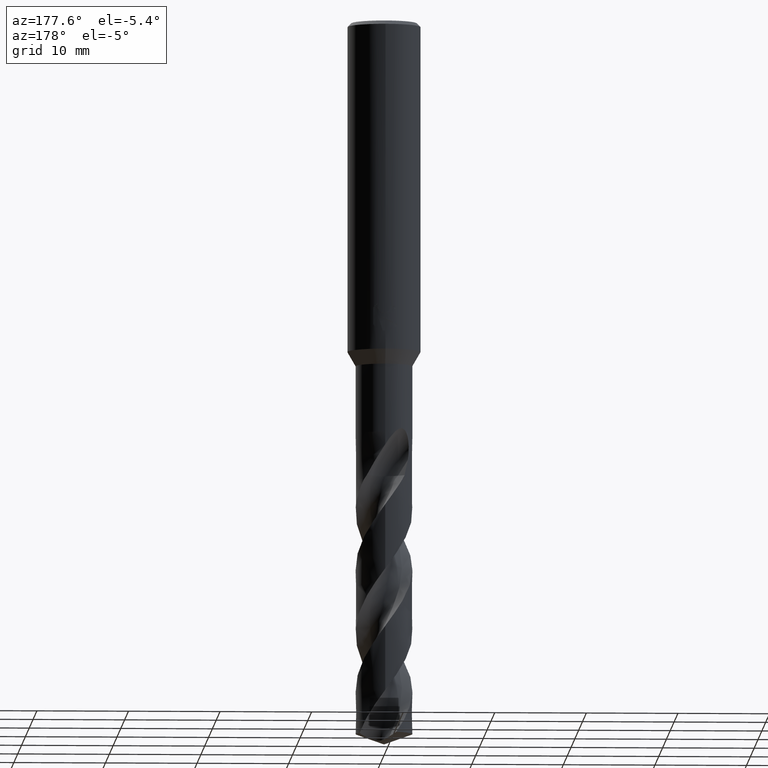
[diagram: clean part render]
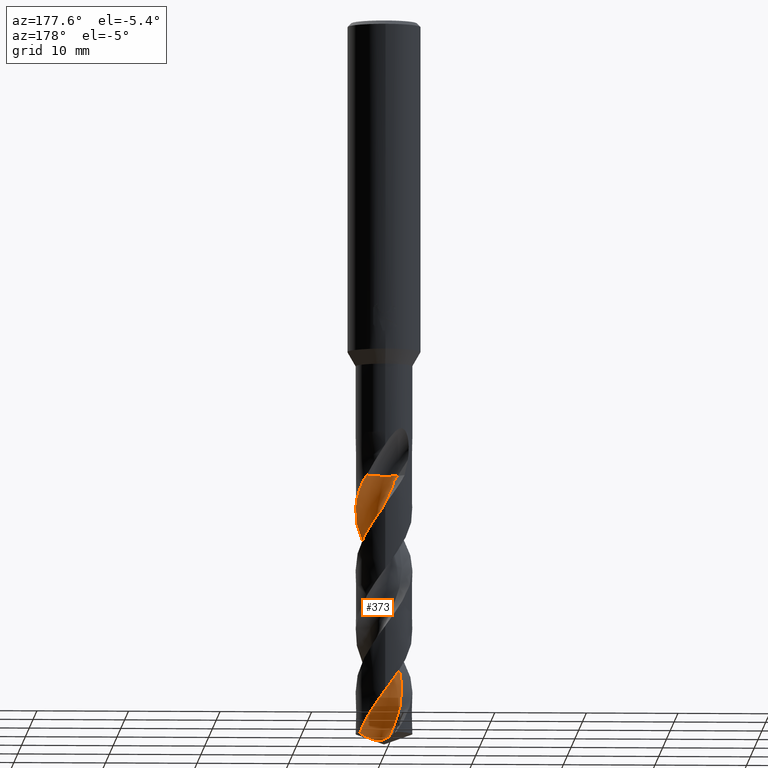
[diagram: same view with one face highlighted and labeled with its STEP entity id]
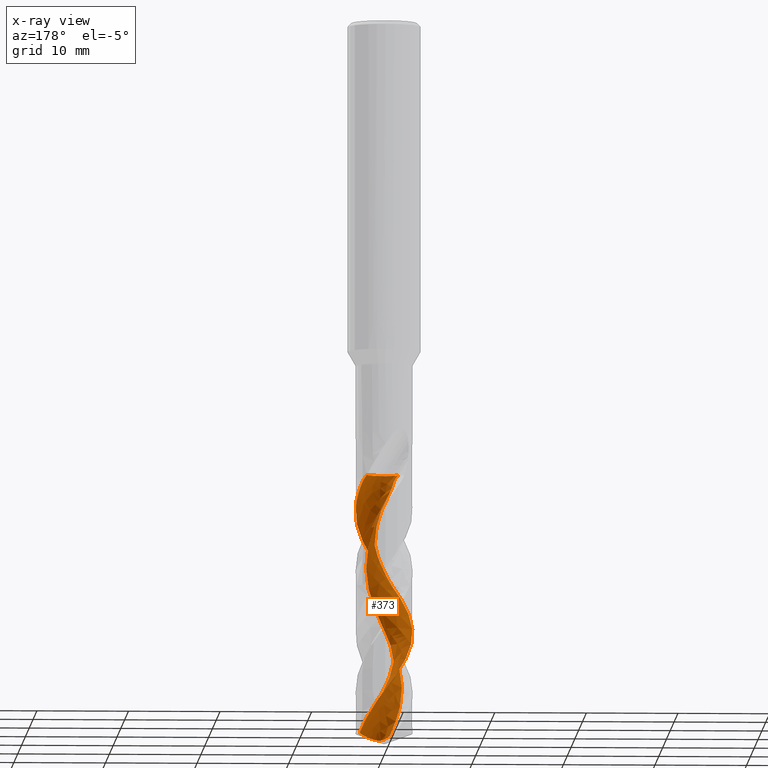
[diagram: x-ray of the same camera — body ghosted, the highlighted face saturated]
A machine part, auxiliary view. The second image highlights one B-rep face of the part: STEP entity #373.
The next image is the same camera in x-ray: the body ghosted, the highlighted face saturated — about 0% of this face is hidden behind the body in this view.
In plain terms, the highlighted face is a freeform B-spline surface patch.
Its self-contained STEP definition (entity closure, byte-faithful):
#307=VERTEX_POINT('',#802);
#337=VERTEX_POINT('',#834);
#371=EDGE_CURVE('',#307,#475,#870,.T.);
#373=ADVANCED_FACE('',(#872),#873,.F.);
#403=EDGE_CURVE('',#727,#307,#903,.T.);
#453=VERTEX_POINT('',#961);
#455=VERTEX_POINT('',#963);
#475=VERTEX_POINT('',#985);
#491=EDGE_CURVE('',#499,#583,#1001,.T.);
#499=VERTEX_POINT('',#1010);
#501=EDGE_CURVE('',#455,#453,#1012,.T.);
#505=EDGE_CURVE('',#475,#337,#1017,.T.);
#555=EDGE_CURVE('',#453,#727,#1072,.T.);
#583=VERTEX_POINT('',#1105);
#689=EDGE_CURVE('',#583,#455,#1222,.T.);
#713=EDGE_CURVE('',#337,#499,#1247,.T.);
#727=VERTEX_POINT('',#1262);
#802=CARTESIAN_POINT('',(-4.00822738942512E-013,-3.09994558055134,-59.9830985722833));
#834=CARTESIAN_POINT('',(-0.253360325551106,0.945576384832785,-49.6922));
#870=B_SPLINE_CURVE_WITH_KNOTS('',3,(#1688,#1689,#1690,#1691,#1692,#1693,#1694,#1695,#1696,#1697,#1698,#1699,#1700,#1701,#1702,#1703,#1704,#1705,#1706,#1707,#1708,#1709,#1710,#1711,#1712,#1713,#1714,#1715,#1716,#1717,#1718,#1719,#1720,#1721,#1722,#1723,#1724,#1725,#1726,#1727,#1728,#1729,#1730,#1731,#1732,#1733,#1734,#1735,#1736,#1737,#1738,#1739,#1740,#1741,#1742,#1743,#1744,#1745,#1746,#1747,#1748,#1749,#1750,#1751,#1752,#1753,#1754,#1755,#1756,#1757,#1758,#1759,#1760,#1761,#1762,#1763,#1764,#1765,#1766,#1767,#1768,#1769,#1770,#1771,#1772,#1773,#1774,#1775,#1776,#1777,#1778,#1779,#1780,#1781,#1782,#1783),.UNSPECIFIED.,.F.,.F.,(4,2,2,2,2,2,2,2,2,2,2,2,2,2,2,2,2,2,2,2,2,2,2,2,2,2,2,2,2,2,2,2,2,2,2,2,2,2,2,2,2,2,2,2,2,2,2,4),(0.0,0.856061599828578,0.90999354519812,2.47001116973718,4.11663108922267,4.97788627065479,5.77339850945867,6.82589222611968,7.35275464787567,8.10410117392145,9.45321117704789,10.1617871965953,11.8207661824631,12.5863520111113,13.6042987073742,14.0778417974565,14.8620699320043,15.8710932693612,16.3323536513082,17.0904064696952,18.8428239925693,19.3077678335371,20.9943446415916,21.8396289358236,23.2259423537072,24.0517196448589,25.0599525603901,25.9325068334401,25.9811669491131,28.1665271789691,28.4334997460325,28.9692208212628,29.3244401552043,29.4938027613145,30.8017105317512,31.5066450987046,32.0323003442432,32.6049616404419,33.3254845802605,33.7665006286478,33.9783776475052,33.9830172229068,34.0439244802444,34.0923185031835,34.1464623251691,34.2381897755453,34.3537111105479,34.5046230974577),.UNSPECIFIED.);
#872=FACE_OUTER_BOUND('',#1785,.T.);
#873=B_SPLINE_SURFACE_WITH_KNOTS('',3,3,((#1786,#1787,#1788,#1789,#1790,#1791,#1792,#1793,#1794,#1795,#1796,#1797,#1798,#1799,#1800,#1801,#1802,#1803,#1804,#1805,#1806,#1807,#1808,#1809,#1810,#1811,#1812,#1813,#1814,#1815,#1816,#1817,#1818,#1819,#1820,#1821,#1822,#1823,#1824,#1825,#1826,#1827,#1828,#1829,#1830,#1831,#1832,#1833,#1834,#1835,#1836,#1837,#1838,#1839,#1840,#1841),(#1842,#1843,#1844,#1845,#1846,#1847,#1848,#1849,#1850,#1851,#1852,#1853,#1854,#1855,#1856,#1857,#1858,#1859,#1860,#1861,#1862,#1863,#1864,#1865,#1866,#1867,#1868,#1869,#1870,#1871,#1872,#1873,#1874,#1875,#1876,#1877,#1878,#1879,#1880,#1881,#1882,#1883,#1884,#1885,#1886,#1887,#1888,#1889,#1890,#1891,#1892,#1893,#1894,#1895,#1896,#1897),(#1898,#1899,#1900,#1901,#1902,#1903,#1904,#1905,#1906,#1907,#1908,#1909,#1910,#1911,#1912,#1913,#1914,#1915,#1916,#1917,#1918,#1919,#1920,#1921,#1922,#1923,#1924,#1925,#1926,#1927,#1928,#1929,#1930,#1931,#1932,#1933,#1934,#1935,#1936,#1937,#1938,#1939,#1940,#1941,#1942,#1943,#1944,#1945,#1946,#1947,#1948,#1949,#1950,#1951,#1952,#1953),(#1954,#1955,#1956,#1957,#1958,#1959,#1960,#1961,#1962,#1963,#1964,#1965,#1966,#1967,#1968,#1969,#1970,#1971,#1972,#1973,#1974,#1975,#1976,#1977,#1978,#1979,#1980,#1981,#1982,#1983,#1984,#1985,#1986,#1987,#1988,#1989,#1990,#1991,#1992,#1993,#1994,#1995,#1996,#1997,#1998,#1999,#2000,#2001,#2002,#2003,#2004,#2005,#2006,#2007,#2008,#2009),(#2010,#2011,#2012,#2013,#2014,#2015,#2016,#2017,#2018,#2019,#2020,#2021,#2022,#2023,#2024,#2025,#2026,#2027,#2028,#2029,#2030,#2031,#2032,#2033,#2034,#2035,#2036,#2037,#2038,#2039,#2040,#2041,#2042,#2043,#2044,#2045,#2046,#2047,#2048,#2049,#2050,#2051,#2052,#2053,#2054,#2055,#2056,#2057,#2058,#2059,#2060,#2061,#2062,#2063,#2064,#2065),(#2066,#2067,#2068,#2069,#2070,#2071,#2072,#2073,#2074,#2075,#2076,#2077,#2078,#2079,#2080,#2081,#2082,#2083,#2084,#2085,#2086,#2087,#2088,#2089,#2090,#2091,#2092,#2093,#2094,#2095,#2096,#2097,#2098,#2099,#2100,#2101,#2102,#2103,#2104,#2105,#2106,#2107,#2108,#2109,#2110,#2111,#2112,#2113,#2114,#2115,#2116,#2117,#2118,#2119,#2120,#2121),(#2122,#2123,#2124,#2125,#2126,#2127,#2128,#2129,#2130,#2131,#2132,#2133,#2134,#2135,#2136,#2137,#2138,#2139,#2140,#2141,#2142,#2143,#2144,#2145,#2146,#2147,#2148,#2149,#2150,#2151,#2152,#2153,#2154,#2155,#2156,#2157,#2158,#2159,#2160,#2161,#2162,#2163,#2164,#2165,#2166,#2167,#2168,#2169,#2170,#2171,#2172,#2173,#2174,#2175,#2176,#2177),(#2178,#2179,#2180,#2181,#2182,#2183,#2184,#2185,#2186,#2187,#2188,#2189,#2190,#2191,#2192,#2193,#2194,#2195,#2196,#2197,#2198,#2199,#2200,#2201,#2202,#2203,#2204,#2205,#2206,#2207,#2208,#2209,#2210,#2211,#2212,#2213,#2214,#2215,#2216,#2217,#2218,#2219,#2220,#2221,#2222,#2223,#2224,#2225,#2226,#2227,#2228,#2229,#2230,#2231,#2232,#2233),(#2234,#2235,#2236,#2237,#2238,#2239,#2240,#2241,#2242,#2243,#2244,#2245,#2246,#2247,#2248,#2249,#2250,#2251,#2252,#2253,#2254,#2255,#2256,#2257,#2258,#2259,#2260,#2261,#2262,#2263,#2264,#2265,#2266,#2267,#2268,#2269,#2270,#2271,#2272,#2273,#2274,#2275,#2276,#2277,#2278,#2279,#2280,#2281,#2282,#2283,#2284,#2285,#2286,#2287,#2288,#2289),(#2290,#2291,#2292,#2293,#2294,#2295,#2296,#2297,#2298,#2299,#2300,#2301,#2302,#2303,#2304,#2305,#2306,#2307,#2308,#2309,#2310,#2311,#2312,#2313,#2314,#2315,#2316,#2317,#2318,#2319,#2320,#2321,#2322,#2323,#2324,#2325,#2326,#2327,#2328,#2329,#2330,#2331,#2332,#2333,#2334,#2335,#2336,#2337,#2338,#2339,#2340,#2341,#2342,#2343,#2344,#2345),(#2346,#2347,#2348,#2349,#2350,#2351,#2352,#2353,#2354,#2355,#2356,#2357,#2358,#2359,#2360,#2361,#2362,#2363,#2364,#2365,#2366,#2367,#2368,#2369,#2370,#2371,#2372,#2373,#2374,#2375,#2376,#2377,#2378,#2379,#2380,#2381,#2382,#2383,#2384,#2385,#2386,#2387,#2388,#2389,#2390,#2391,#2392,#2393,#2394,#2395,#2396,#2397,#2398,#2399,#2400,#2401)),.UNSPECIFIED.,.F.,.F.,.F.,(4,1,1,1,1,1,1,1,4),(4,1,2,1,2,2,2,2,2,1,2,1,2,1,2,1,2,1,2,1,2,1,2,1,2,1,2,1,2,1,2,1,2,2,4),(-7.87936310948255E-017,0.392701541045706,0.785403082091412,1.17810462313712,1.57080616418282,1.96350770522853,2.35620924627424,2.74891078731994,3.14161232836565),(0.0,0.654705551796728,1.30941110359346,1.96411665539018,2.61882220718691,3.92823331078037,5.23764441437382,6.54705551796728,7.85646662156073,9.16587772515419,10.4752888287476,11.7846999323411,13.0941110359346,14.403522139528,15.7129332431215,17.0223443467149,18.3317554503084,19.6411665539018,20.9505776574953,22.2599887610887,23.5693998646822,24.8788109682757,26.1882220718691,27.4976331754626,28.807044279056,30.1164553826495,31.4258664862429,32.7352775898364,34.0446886934298,35.3540997970233,36.6635109006168,37.9729220042102,39.2823331078037,40.5917442113971,41.9011553149906),.UNSPECIFIED.);
#903=B_SPLINE_CURVE_WITH_KNOTS('',3,(#2573,#2574,#2575,#2576,#2577,#2578,#2579,#2580,#2581,#2582,#2583,#2584,#2585,#2586,#2587,#2588,#2589,#2590,#2591,#2592,#2593,#2594,#2595,#2596,#2597,#2598,#2599,#2600,#2601,#2602,#2603,#2604,#2605,#2606,#2607,#2608,#2609,#2610,#2611,#2612,#2613,#2614,#2615,#2616,#2617,#2618,#2619,#2620,#2621,#2622,#2623,#2624,#2625,#2626,#2627,#2628,#2629,#2630,#2631,#2632,#2633,#2634,#2635,#2636,#2637,#2638,#2639,#2640,#2641,#2642,#2643,#2644,#2645,#2646,#2647,#2648,#2649,#2650,#2651,#2652,#2653,#2654,#2655,#2656,#2657,#2658,#2659,#2660,#2661,#2662,#2663,#2664,#2665,#2666,#2667,#2668),.UNSPECIFIED.,.F.,.F.,(4,2,2,2,2,2,2,2,2,2,2,2,2,2,2,2,2,2,2,2,2,2,2,2,2,2,2,2,2,2,2,2,2,2,2,2,2,2,2,2,2,2,2,2,2,2,2,4),(0.0,0.856061599828578,0.90999354519812,2.47001116973718,4.11663108922267,4.97788627065479,5.77339850945867,6.82589222611968,7.35275464787567,8.10410117392145,9.45321117704789,10.1617871965953,11.8207661824631,12.5863520111113,13.6042987073742,14.0778417974565,14.8620699320043,15.8710932693612,16.3323536513082,17.0904064696952,18.8428239925693,19.3077678335371,20.9943446415916,21.8396289358236,23.2259423537072,24.0517196448589,25.0599525603901,25.9325068334401,25.9811669491131,28.1665271789691,28.4334997460325,28.9692208212628,29.3244401552043,29.4938027613145,30.8017105317512,31.5066450987046,32.0323003442432,32.6049616404419,33.3254845802605,33.7665006286478,33.9783776475052,33.9830172229068,34.0439244802444,34.0923185031835,34.1464623251691,34.2381897755453,34.3537111105479,34.5046230974577),.UNSPECIFIED.);
#961=CARTESIAN_POINT('',(2.72634811048656,1.47547483219687,-77.8716922737748));
#963=CARTESIAN_POINT('',(-2.57334879773004E-012,1.20644897234124,-78.5608884849067));
#985=CARTESIAN_POINT('',(1.97534083153026,2.38903685765276,-49.6922));
#1001=B_SPLINE_CURVE_WITH_KNOTS('',3,(#3324,#3325,#3326,#3327,#3328,#3329,#3330,#3331,#3332,#3333,#3334,#3335,#3336,#3337,#3338,#3339,#3340,#3341,#3342,#3343,#3344,#3345,#3346,#3347,#3348,#3349,#3350,#3351,#3352,#3353,#3354,#3355,#3356,#3357,#3358,#3359,#3360,#3361,#3362,#3363,#3364,#3365,#3366,#3367,#3368,#3369,#3370,#3371,#3372,#3373,#3374,#3375,#3376,#3377,#3378,#3379),.UNSPECIFIED.,.F.,.F.,(4,1,2,1,2,2,2,2,2,1,2,1,2,1,2,1,2,1,2,1,2,1,2,1,2,1,2,1,2,1,2,1,2,2,4),(0.0,0.654705551796728,1.30941110359346,1.96411665539018,2.61882220718691,3.92823331078037,5.23764441437382,6.54705551796728,7.85646662156073,9.16587772515419,10.4752888287476,11.7846999323411,13.0941110359346,14.403522139528,15.7129332431215,17.0223443467149,18.3317554503084,19.6411665539018,20.9505776574953,22.2599887610887,23.5693998646822,24.8788109682757,26.1882220718691,27.4976331754626,28.807044279056,30.1164553826495,31.4258664862429,32.7352775898364,34.0446886934298,35.3540997970233,36.6635109006168,37.9729220042102,39.2823331078037,40.5917442113971,41.9011553149906),.UNSPECIFIED.);
#1010=CARTESIAN_POINT('',(-1.46135401673851,1.53531265326149,-49.6922));
#1012=B_SPLINE_CURVE_WITH_KNOTS('',3,(#3402,#3403,#3404,#3405,#3406,#3407,#3408,#3409,#3410,#3411,#3412,#3413,#3414,#3415,#3416,#3417,#3418,#3419,#3420,#3421),.UNSPECIFIED.,.F.,.F.,(4,2,2,2,2,2,2,2,2,4),(0.0,1.27767973892472,2.15719110888076,2.97014474915914,3.84600148663042,4.81135822773782,5.92797958653841,7.20045316818386,8.15986840858132,9.12177313206861),.UNSPECIFIED.);
#1017=CIRCLE('',#3427,2.06666667);
#1072=B_SPLINE_CURVE_WITH_KNOTS('',3,(#4332,#4333,#4334,#4335,#4336,#4337,#4338,#4339,#4340,#4341,#4342,#4343,#4344,#4345,#4346,#4347,#4348,#4349,#4350,#4351,#4352,#4353,#4354,#4355,#4356,#4357,#4358,#4359,#4360,#4361,#4362,#4363,#4364,#4365,#4366,#4367,#4368,#4369,#4370,#4371,#4372,#4373,#4374,#4375,#4376,#4377,#4378,#4379,#4380,#4381,#4382,#4383,#4384,#4385,#4386,#4387,#4388,#4389,#4390,#4391,#4392,#4393,#4394,#4395,#4396,#4397,#4398,#4399,#4400,#4401,#4402,#4403,#4404,#4405,#4406,#4407,#4408,#4409,#4410,#4411,#4412,#4413,#4414,#4415,#4416,#4417,#4418,#4419,#4420,#4421,#4422,#4423,#4424,#4425,#4426,#4427),.UNSPECIFIED.,.F.,.F.,(4,2,2,2,2,2,2,2,2,2,2,2,2,2,2,2,2,2,2,2,2,2,2,2,2,2,2,2,2,2,2,2,2,2,2,2,2,2,2,2,2,2,2,2,2,2,2,4),(0.0,0.856061599828578,0.90999354519812,2.47001116973718,4.11663108922267,4.97788627065479,5.77339850945867,6.82589222611968,7.35275464787567,8.10410117392145,9.45321117704789,10.1617871965953,11.8207661824631,12.5863520111113,13.6042987073742,14.0778417974565,14.8620699320043,15.8710932693612,16.3323536513082,17.0904064696952,18.8428239925693,19.3077678335371,20.9943446415916,21.8396289358236,23.2259423537072,24.0517196448589,25.0599525603901,25.9325068334401,25.9811669491131,28.1665271789691,28.4334997460325,28.9692208212628,29.3244401552043,29.4938027613145,30.8017105317512,31.5066450987046,32.0323003442432,32.6049616404419,33.3254845802605,33.7665006286478,33.9783776475052,33.9830172229068,34.0439244802444,34.0923185031835,34.1464623251691,34.2381897755453,34.3537111105479,34.5046230974577),.UNSPECIFIED.);
#1105=CARTESIAN_POINT('',(-0.523874170516875,1.88324297711443,-78.2885291198749));
#1222=B_SPLINE_CURVE_WITH_KNOTS('',3,(#5014,#5015,#5016,#5017,#5018,#5019,#5020,#5021,#5022,#5023,#5024,#5025,#5026,#5027,#5028,#5029,#5030,#5031,#5032,#5033),.UNSPECIFIED.,.F.,.F.,(4,2,2,2,2,2,2,2,2,4),(0.0,1.27767973892472,2.15719110888076,2.97014474915914,3.84600148663042,4.81135822773782,5.92797958653841,7.20045316818386,8.15986840858132,9.12177313206861),.UNSPECIFIED.);
#1247=CIRCLE('',#5179,2.06666667);
#1262=CARTESIAN_POINT('',(-1.37635416684518E-013,3.09998612539507,-73.3108748370046));
#1688=CARTESIAN_POINT('',(2.72634811048657,1.47547483219683,-77.8716922737748));
#1689=CARTESIAN_POINT('',(2.64635538440093,1.62328205876839,-77.6410821769975));
#1690=CARTESIAN_POINT('',(2.55452195491694,1.76425062764722,-77.411657398631));
#1691=CARTESIAN_POINT('',(2.44534140232716,1.905361890976,-77.1663861455967));
#1692=CARTESIAN_POINT('',(2.43882298038724,1.91369837382772,-77.1518393935649));
#1693=CARTESIAN_POINT('',(2.24196150828178,2.16281670318266,-76.7155912082537));
#1694=CARTESIAN_POINT('',(2.01673311143458,2.37436599815702,-76.3008129561586));
#1695=CARTESIAN_POINT('',(1.49606750602002,2.73448642051394,-75.4367217962013));
#1696=CARTESIAN_POINT('',(1.20152571341343,2.87610701622543,-74.9900907269514));
#1697=CARTESIAN_POINT('',(0.727187543509874,3.01828607364069,-74.3144637437813));
#1698=CARTESIAN_POINT('',(0.560699125482907,3.05358032526732,-74.0835782416398));
#1699=CARTESIAN_POINT('',(0.236823426572286,3.0949010312924,-73.6368234157333));
#1700=CARTESIAN_POINT('',(0.0803699460708628,3.10288992383102,-73.4210453620059));
#1701=CARTESIAN_POINT('',(-0.282904902181889,3.09397851732863,-72.9227847200444));
#1702=CARTESIAN_POINT('',(-0.489074883842358,3.06819461544249,-72.6412880642333));
#1703=CARTESIAN_POINT('',(-0.792794261846319,2.99869531534191,-72.2163750917124));
#1704=CARTESIAN_POINT('',(-0.89272054334888,2.97046704909394,-72.0748008711419));
#1705=CARTESIAN_POINT('',(-1.13088515581342,2.89012321706516,-71.7303159910576));
#1706=CARTESIAN_POINT('',(-1.26712370670139,2.83304121656871,-71.5267137736936));
#1707=CARTESIAN_POINT('',(-1.63583972271203,2.64656918515408,-70.9605056169426));
#1708=CARTESIAN_POINT('',(-1.85637064531601,2.49686114066311,-70.6014906885243));
#1709=CARTESIAN_POINT('',(-2.15968484244749,2.22824578975005,-70.0474694128115));
#1710=CARTESIAN_POINT('',(-2.25752383461656,2.12900953590406,-69.8557048036418));
#1711=CARTESIAN_POINT('',(-2.56016324047564,1.77789308803985,-69.2187695603404));
#1712=CARTESIAN_POINT('',(-2.73235136908644,1.49997576852614,-68.7808772644286));
#1713=CARTESIAN_POINT('',(-2.91640502425696,1.06157368353347,-68.1299997727536));
#1714=CARTESIAN_POINT('',(-2.96427598892286,0.919417037909113,-67.923286312187));
#1715=CARTESIAN_POINT('',(-3.05146042811707,0.5814446533651,-67.4445704374427));
#1716=CARTESIAN_POINT('',(-3.08259535639124,0.383890345100747,-67.17340404227));
#1717=CARTESIAN_POINT('',(-3.10001127117625,0.091487969006673,-66.7739849582253));
#1718=CARTESIAN_POINT('',(-3.10135367859165,-0.00144144437856537,-66.6473014472894));
#1719=CARTESIAN_POINT('',(-3.09386567404572,-0.247763529123881,-66.3100456327137));
#1720=CARTESIAN_POINT('',(-3.07781123236405,-0.400440594019706,-66.0985240852688));
#1721=CARTESIAN_POINT('',(-3.01547641439796,-0.745364763118594,-65.6177695066188));
#1722=CARTESIAN_POINT('',(-2.9619069724266,-0.93597529320692,-65.3492613668682));
#1723=CARTESIAN_POINT('',(-2.85765196087329,-1.20489376403084,-64.9559954822525));
#1724=CARTESIAN_POINT('',(-2.82130214101715,-1.28769562756965,-64.832741249319));
#1725=CARTESIAN_POINT('',(-2.71592375183388,-1.50183987058818,-64.5062242624037));
#1726=CARTESIAN_POINT('',(-2.64110015383711,-1.62978339258871,-64.3020707253111));
#1727=CARTESIAN_POINT('',(-2.36440483433113,-2.03375095091664,-63.6300382643595));
#1728=CARTESIAN_POINT('',(-2.12611580216134,-2.28166611605546,-63.1706521717368));
#1729=CARTESIAN_POINT('',(-1.77959070952415,-2.53987783796884,-62.5775702087606));
#1730=CARTESIAN_POINT('',(-1.70475881399318,-2.59069394533331,-62.4527861142469));
#1731=CARTESIAN_POINT('',(-1.34838665154337,-2.81056969383673,-61.8774865168319));
#1732=CARTESIAN_POINT('',(-1.04336602225805,-2.93753383601149,-61.4351981595766));
#1733=CARTESIAN_POINT('',(-0.563599843422961,-3.05273113459533,-60.7595376832478));
#1734=CARTESIAN_POINT('',(-0.400885409922881,-3.07832481120377,-60.5326026978763));
#1735=CARTESIAN_POINT('',(0.0326123180147171,-3.11151804077169,-59.9370170186701));
#1736=CARTESIAN_POINT('',(0.303437692524094,-3.09686497731552,-59.5718855825356));
#1737=CARTESIAN_POINT('',(0.727214415484803,-3.01773122243528,-58.9819958766723));
#1738=CARTESIAN_POINT('',(0.882531102518633,-2.97599881715211,-58.7604495020508));
#1739=CARTESIAN_POINT('',(1.21877930690145,-2.85703584365993,-58.2714337163702));
#1740=CARTESIAN_POINT('',(1.39728521266187,-2.77415212795407,-58.0045864365988));
#1741=CARTESIAN_POINT('',(1.71392116991194,-2.5886435938691,-57.5041632420755));
#1742=CARTESIAN_POINT('',(1.85296400251965,-2.49092774449845,-57.272892894484));
#1743=CARTESIAN_POINT('',(1.99016828980943,-2.37674692033754,-57.0268560154635));
#1744=CARTESIAN_POINT('',(1.99737297680336,-2.37069540151696,-57.0138782703014));
#1745=CARTESIAN_POINT('',(2.32755738003464,-2.09078247846483,-56.4171800081282));
#1746=CARTESIAN_POINT('',(2.59102412435815,-1.7538062163426,-55.8512516835309));
#1747=CARTESIAN_POINT('',(2.80181943435909,-1.32742662127989,-55.1982278460746));
#1748=CARTESIAN_POINT('',(2.82358008989569,-1.2804887564111,-55.1270292507498));
#1749=CARTESIAN_POINT('',(2.88554428428254,-1.13754674168805,-54.9131258718866));
#1750=CARTESIAN_POINT('',(2.92211505415121,-1.0400309457589,-54.7706979345435));
#1751=CARTESIAN_POINT('',(2.97470116622078,-0.874920528588949,-54.5335552109231));
#1752=CARTESIAN_POINT('',(2.99345702729485,-0.808419894755339,-54.4390807485745));
#1753=CARTESIAN_POINT('',(3.01784812842031,-0.709388700008965,-54.2994264554321));
#1754=CARTESIAN_POINT('',(3.0252111248341,-0.67730062536651,-54.2543194620886));
#1755=CARTESIAN_POINT('',(3.08497099254686,-0.396414168966532,-53.8610590367864));
#1756=CARTESIAN_POINT('',(3.10712550466728,-0.141942545818186,-53.5146125962447));
#1757=CARTESIAN_POINT('',(3.09290011730283,0.249667980741931,-52.9791354128935));
#1758=CARTESIAN_POINT('',(3.07882736849181,0.386003761445228,-52.792370770044));
#1759=CARTESIAN_POINT('',(3.0387877163043,0.62101533764836,-52.4641597605319));
#1760=CARTESIAN_POINT('',(3.01679251128423,0.720375598653614,-52.3229796563002));
#1761=CARTESIAN_POINT('',(2.96033278289276,0.926475427694253,-52.0296734386731));
#1762=CARTESIAN_POINT('',(2.92491569312956,1.03304141172935,-51.8772342370592));
#1763=CARTESIAN_POINT('',(2.83111485913557,1.27064940064142,-51.5346581609883));
#1764=CARTESIAN_POINT('',(2.77083057546382,1.39717881221031,-51.3519751671586));
#1765=CARTESIAN_POINT('',(2.65867688249544,1.5963913736791,-51.0360244594527));
#1766=CARTESIAN_POINT('',(2.6139504764991,1.66840117300747,-50.9154966666148));
#1767=CARTESIAN_POINT('',(2.54551423964795,1.76958095894612,-50.7334876552202));
#1768=CARTESIAN_POINT('',(2.52305113773127,1.80143529519446,-50.674105710278));
#1769=CARTESIAN_POINT('',(2.49989850686769,1.83302865007963,-50.6128585859299));
#1770=CARTESIAN_POINT('',(2.49908636265083,1.8341365403273,-50.610708745699));
#1771=CARTESIAN_POINT('',(2.48307023134737,1.85593073006485,-50.5685193960323));
#1772=CARTESIAN_POINT('',(2.46764871496828,1.87640141921871,-50.5297365852051));
#1773=CARTESIAN_POINT('',(2.4388379215996,1.91363189799541,-50.4607096936897));
#1774=CARTESIAN_POINT('',(2.42570972011179,1.93025369569053,-50.4304152224055));
#1775=CARTESIAN_POINT('',(2.39702635433081,1.96578925016014,-50.3667172013955));
#1776=CARTESIAN_POINT('',(2.38139486035438,1.98470757311337,-50.3334313061418));
#1777=CARTESIAN_POINT('',(2.33785630869448,2.03609938842897,-50.2445825898632));
#1778=CARTESIAN_POINT('',(2.30905587398881,2.06875518983079,-50.1897897851732));
#1779=CARTESIAN_POINT('',(2.24039258818735,2.14319932789743,-50.0680204355536));
#1780=CARTESIAN_POINT('',(2.19979796787844,2.18494225577073,-50.0019260491392));
#1781=CARTESIAN_POINT('',(2.10026534269429,2.28134099266057,-49.85278557535));
#1782=CARTESIAN_POINT('',(2.03992770341697,2.33563444227022,-49.7713680486663));
#1783=CARTESIAN_POINT('',(1.97534083153026,2.38903685765276,-49.6922));
#1785=EDGE_LOOP('',(#5464,#5465,#5466,#5467,#5468,#5469,#5470,#5471));
#1786=CARTESIAN_POINT('',(1.46135401673851,4.45802068673851,-49.6922));
#1787=CARTESIAN_POINT('',(1.61753260892158,4.4460997298541,-49.8445405308872));
#1788=CARTESIAN_POINT('',(1.9334084146236,4.3896409065883,-50.151814757653));
#1789=CARTESIAN_POINT('',(2.24468105881024,4.24557520821148,-50.4600294236019));
#1790=CARTESIAN_POINT('',(2.54132762757939,4.04831842668381,-50.7633648523472));
#1791=CARTESIAN_POINT('',(2.82569031995012,3.84149787922002,-51.0657913578826));
#1792=CARTESIAN_POINT('',(3.09002496833003,3.62152903888882,-51.3703833564724));
#1793=CARTESIAN_POINT('',(3.47279358299304,3.28451276256196,-51.8311254403761));
#1794=CARTESIAN_POINT('',(3.70302603139723,3.02945302872482,-52.1378789686788));
#1795=CARTESIAN_POINT('',(4.09520882696553,2.46354370449459,-52.7466902946634));
#1796=CARTESIAN_POINT('',(4.26220272720033,2.16140076767212,-53.0514901108024));
#1797=CARTESIAN_POINT('',(4.52822001648419,1.52881594941504,-53.6630311566721));
#1798=CARTESIAN_POINT('',(4.627536590417,1.19883956113567,-53.9685572215028));
#1799=CARTESIAN_POINT('',(4.75095551439334,0.523497325473281,-54.5788973976626));
#1800=CARTESIAN_POINT('',(4.77694808754288,0.179447413046607,-54.8842549052054));
#1801=CARTESIAN_POINT('',(4.75080840493044,-0.507393304871132,-55.4950739754829));
#1802=CARTESIAN_POINT('',(4.65410341554867,-1.18966926634155,-56.1055332378024));
#1803=CARTESIAN_POINT('',(4.41474168850529,-1.83650186932322,-56.7166827340877));
#1804=CARTESIAN_POINT('',(4.10281616212161,-2.44931965661265,-57.3273021937458));
#1805=CARTESIAN_POINT('',(3.72880062677241,-3.02834255305783,-57.9375309797186));
#1806=CARTESIAN_POINT('',(3.240530512326,-3.51560368988838,-58.5486215994497));
#1807=CARTESIAN_POINT('',(2.70083699268957,-3.94170485565959,-59.1593521019855));
#1808=CARTESIAN_POINT('',(2.11887334091371,-4.31108392676323,-59.769674137238));
#1809=CARTESIAN_POINT('',(1.47151410239865,-4.54920769958558,-60.3807770170514));
#1810=CARTESIAN_POINT('',(0.803032583639807,-4.71026253719762,-60.9914690071352));
#1811=CARTESIAN_POINT('',(0.119897424513256,-4.80213502348614,-61.6017629125226));
#1812=CARTESIAN_POINT('',(-0.567706193645593,-4.74745285305422,-62.2128640320274));
#1813=CARTESIAN_POINT('',(-1.24223230464994,-4.61392592639353,-62.8235667583915));
#1814=CARTESIAN_POINT('',(-1.90110413752774,-4.41142947922453,-63.433867763792));
#1815=CARTESIAN_POINT('',(-2.50268640031794,-4.07396372829068,-64.044968542746));
#1816=CARTESIAN_POINT('',(-3.05939421669364,-3.67037099426273,-64.6556680791972));
#1817=CARTESIAN_POINT('',(-3.57302016317203,-3.21069267923056,-65.2659673318186));
#1818=CARTESIAN_POINT('',(-3.97812358674729,-2.6524107625169,-65.8770680551596));
#1819=CARTESIAN_POINT('',(-4.314791000364,-2.05285255450585,-66.4877675758252));
#1820=CARTESIAN_POINT('',(-4.58885551234999,-1.42039041816764,-67.0980669398592));
#1821=CARTESIAN_POINT('',(-4.72308676702998,-0.743801651210856,-67.7091683883117));
#1822=CARTESIAN_POINT('',(-4.77788648302468,-0.0583719319565158,-68.3198689174607));
#1823=CARTESIAN_POINT('',(-4.76205689884449,0.630736255813705,-68.9301681877608));
#1824=CARTESIAN_POINT('',(-4.60076357394961,1.30138945598275,-69.5412681633591));
#1825=CARTESIAN_POINT('',(-4.36363343110221,1.94682583330884,-70.1519671441489));
#1826=CARTESIAN_POINT('',(-4.06082527231588,2.56604124359587,-70.7622675195845));
#1827=CARTESIAN_POINT('',(-3.63364300206169,3.10761049355077,-71.3733749428568));
#1828=CARTESIAN_POINT('',(-3.1481439293577,3.59453047346505,-71.9840841502734));
#1829=CARTESIAN_POINT('',(-2.61396394926622,4.03013551184096,-72.5943802200181));
#1830=CARTESIAN_POINT('',(-1.99932504035194,4.34318773822937,-73.2054565499467));
#1831=CARTESIAN_POINT('',(-1.35459135214078,4.58224804633546,-73.8161271034606));
#1832=CARTESIAN_POINT('',(-0.687091549814693,4.75436202635652,-74.4264455918494));
#1833=CARTESIAN_POINT('',(0.00220505021455014,4.78128921758615,-75.0376209330253));
#1834=CARTESIAN_POINT('',(0.687781348403182,4.72817429953291,-75.6483898987489));
#1835=CARTESIAN_POINT('',(1.36578117739422,4.60480878448384,-76.2586026183004));
#1836=CARTESIAN_POINT('',(2.00302830894931,4.34160883903412,-76.8695449646215));
#1837=CARTESIAN_POINT('',(2.60402847451138,4.00815724180226,-77.4802016564959));
#1838=CARTESIAN_POINT('',(2.88664593975766,3.8100771275574,-77.7856264724962));
#1839=CARTESIAN_POINT('',(3.40130939004733,3.35521761502904,-78.3962470166973));
#1840=CARTESIAN_POINT('',(3.63456302642924,3.10290295984811,-78.7009917971759));
#1841=CARTESIAN_POINT('',(3.83995872509297,2.83006550362977,-79.0061641523821));
#1842=CARTESIAN_POINT('',(1.65263832519008,4.26672101271536,-49.6922000000001));
#1843=CARTESIAN_POINT('',(1.80841713718609,4.25440030672544,-49.8445288645292));
#1844=CARTESIAN_POINT('',(2.1194178813479,4.19293073329434,-50.152079837006));
#1845=CARTESIAN_POINT('',(2.41647223257299,4.03622250614609,-50.4606577713394));
#1846=CARTESIAN_POINT('',(2.69311056584168,3.82403547066245,-50.7636945376379));
#1847=CARTESIAN_POINT('',(2.95808505607842,3.60488000833552,-51.0657122217347));
#1848=CARTESIAN_POINT('',(3.20500415258861,3.37648902066433,-51.3702081898855));
#1849=CARTESIAN_POINT('',(3.56318826957451,3.02891111903995,-51.8313353606574));
#1850=CARTESIAN_POINT('',(3.77533969288823,2.76799772723704,-52.1382802637144));
#1851=CARTESIAN_POINT('',(4.12814262813766,2.19427903219737,-52.7468263944511));
#1852=CARTESIAN_POINT('',(4.27566108755245,1.89051152184435,-53.0515507059185));
#1853=CARTESIAN_POINT('',(4.50286646872832,1.25878056530177,-53.6632093186368));
#1854=CARTESIAN_POINT('',(4.58294431038466,0.931297521364414,-53.9687595699823));
#1855=CARTESIAN_POINT('',(4.66837306615503,0.265142540179255,-54.5790495082364));
#1856=CARTESIAN_POINT('',(4.67602243162986,-0.0723208361365874,-54.8844081042406));
#1857=CARTESIAN_POINT('',(4.61448054339275,-0.741888021490768,-55.4952437479524));
#1858=CARTESIAN_POINT('',(4.4850221982234,-1.40345523302232,-56.105669529065));
#1859=CARTESIAN_POINT('',(4.2178813025255,-2.02311176649167,-56.7168814175147));
#1860=CARTESIAN_POINT('',(3.88088562000308,-2.60528094506585,-57.3274896320011));
#1861=CARTESIAN_POINT('',(3.48572853142348,-3.15167869395823,-57.9376528844524));
#1862=CARTESIAN_POINT('',(2.98362103588702,-3.6026323889533,-58.5487977665738));
#1863=CARTESIAN_POINT('',(2.43400210962723,-3.99044333428327,-59.1595324708254));
#1864=CARTESIAN_POINT('',(1.84649510700538,-4.32136359470056,-59.7698019418124));
#1865=CARTESIAN_POINT('',(1.20176444636367,-4.52071765096237,-60.3809607741244));
#1866=CARTESIAN_POINT('',(0.540296146859683,-4.64283890324378,-60.991651607214));
#1867=CARTESIAN_POINT('',(-0.131775512796562,-4.69746317782306,-61.6018890404796));
#1868=CARTESIAN_POINT('',(-0.800765528068538,-4.6086728015699,-62.2130458644754));
#1869=CARTESIAN_POINT('',(-1.45262651356953,-4.44272238128186,-62.8237489359079));
#1870=CARTESIAN_POINT('',(-2.08585975302193,-4.21102771729236,-63.4339944533763));
#1871=CARTESIAN_POINT('',(-2.65626072738495,-3.85037600045974,-64.0451508785309));
#1872=CARTESIAN_POINT('',(-3.17881367936685,-3.42682355364393,-64.6558503337896));
#1873=CARTESIAN_POINT('',(-3.65693420543358,-2.95135904685623,-65.2660938457234));
#1874=CARTESIAN_POINT('',(-4.02401410766295,-2.38507086641373,-65.8772502070675));
#1875=CARTESIAN_POINT('',(-4.32130726324846,-1.78168116556701,-66.4879496465406));
#1876=CARTESIAN_POINT('',(-4.55651798029735,-1.14974338906139,-67.0981932762486));
#1877=CARTESIAN_POINT('',(-4.65286506493024,-0.481798812666886,-67.709350460385));
#1878=CARTESIAN_POINT('',(-4.67030127731061,0.19062970955708,-68.3200510707267));
#1879=CARTESIAN_POINT('',(-4.61940411556047,0.862998485730902,-68.930294618944));
#1880=CARTESIAN_POINT('',(-4.42732301582679,1.50994386881425,-69.5414501033866));
#1881=CARTESIAN_POINT('',(-4.16170192142177,2.12793369243523,-70.1521489217913));
#1882=CARTESIAN_POINT('',(-3.8340533869895,2.71726941724779,-70.7623936072353));
#1883=CARTESIAN_POINT('',(-3.38883399057625,3.22442270630459,-71.3735576302302));
#1884=CARTESIAN_POINT('',(-2.88894804522418,3.6744920862496,-71.9842682585168));
#1885=CARTESIAN_POINT('',(-2.34471399638873,4.0725620838234,-72.594508420677));
#1886=CARTESIAN_POINT('',(-1.7280994590579,4.34680916455469,-73.2056369450253));
#1887=CARTESIAN_POINT('',(-1.0857230171145,4.54638623389585,-73.8163028299661));
#1888=CARTESIAN_POINT('',(-0.424799640688278,4.68020834299484,-74.4265672109714));
#1889=CARTESIAN_POINT('',(0.250042233160111,4.67104341605523,-75.0378089825364));
#1890=CARTESIAN_POINT('',(0.916923672015261,4.58301570092099,-75.6485897617797));
#1891=CARTESIAN_POINT('',(1.57290211378109,4.42762692150358,-76.2587389317494));
#1892=CARTESIAN_POINT('',(2.18201799574907,4.137807044811,-76.8697137492818));
#1893=CARTESIAN_POINT('',(2.75164343217446,3.78060035742785,-77.4803559482816));
#1894=CARTESIAN_POINT('',(3.0175087552364,3.57249119550224,-77.785783275156));
#1895=CARTESIAN_POINT('',(3.49643131522405,3.10120229946304,-78.3964338606098));
#1896=CARTESIAN_POINT('',(3.7114663775949,2.84285059756289,-78.7011433982959));
#1897=CARTESIAN_POINT('',(3.8984347718323,2.56593338191282,-79.0063259431703));
#1898=CARTESIAN_POINT('',(1.95905337189719,3.8081353521277,-49.6922000000001));
#1899=CARTESIAN_POINT('',(2.11387382164821,3.79517429560978,-49.8445096772124));
#1900=CARTESIAN_POINT('',(2.41313390609056,3.72562400197438,-50.1525158070234));
#1901=CARTESIAN_POINT('',(2.67673044052362,3.54928969282539,-50.4616912016166));
#1902=CARTESIAN_POINT('',(2.90742329067062,3.31520530874667,-50.7642367634877));
#1903=CARTESIAN_POINT('',(3.1287243230468,3.07909537014619,-51.065582067647));
#1904=CARTESIAN_POINT('',(3.33747048994983,2.84078908929657,-51.3699200987599));
#1905=CARTESIAN_POINT('',(3.64229598861338,2.48186881270249,-51.831680608871));
#1906=CARTESIAN_POINT('',(3.81596521046427,2.21644051717311,-52.1389402753307));
#1907=CARTESIAN_POINT('',(4.08691947564864,1.64276651761162,-52.7470502244377));
#1908=CARTESIAN_POINT('',(4.19484921830577,1.34349522301302,-53.0516503628325));
#1909=CARTESIAN_POINT('',(4.3447866988489,0.728905696772529,-53.6635023403095));
#1910=CARTESIAN_POINT('',(4.38738666295469,0.414058834933226,-53.969092377216));
#1911=CARTESIAN_POINT('',(4.40050454342462,-0.218618174355168,-54.5792996721128));
#1912=CARTESIAN_POINT('',(4.37409443669298,-0.535616818251341,-54.8846600574082));
#1913=CARTESIAN_POINT('',(4.24863210762805,-1.15656602089448,-55.4955229790064));
#1914=CARTESIAN_POINT('',(4.06191597460911,-1.76369962094836,-56.1058936758954));
#1915=CARTESIAN_POINT('',(3.75003536563347,-2.31796869316237,-56.717208194768));
#1916=CARTESIAN_POINT('',(3.37509777684495,-2.82888406009532,-57.3277979006943));
#1917=CARTESIAN_POINT('',(2.95064036280792,-3.30163799716309,-57.9378533857776));
#1918=CARTESIAN_POINT('',(2.43530206985557,-3.67448948721602,-58.5490874972313));
#1919=CARTESIAN_POINT('',(1.88106315536482,-3.98178912298022,-59.1598291271304));
#1920=CARTESIAN_POINT('',(1.29776549383699,-4.23360357835363,-59.7700121369934));
#1921=CARTESIAN_POINT('',(0.673708175150743,-4.35647980333199,-60.381262992269));
#1922=CARTESIAN_POINT('',(0.041745856597942,-4.4035391929364,-60.9919519287212));
#1923=CARTESIAN_POINT('',(-0.593391171928109,-4.3880822909542,-61.6020964747002));
#1924=CARTESIAN_POINT('',(-1.21159822923106,-4.2384918069723,-62.2133449286175));
#1925=CARTESIAN_POINT('',(-1.80524485159435,-4.01672116801015,-62.8240485510576));
#1926=CARTESIAN_POINT('',(-2.37560060291232,-3.7368379178366,-63.4342028005806));
#1927=CARTESIAN_POINT('',(-2.8744319155173,-3.34222370611713,-64.0454508032869));
#1928=CARTESIAN_POINT('',(-3.32075226426695,-2.8923423804706,-64.6561500429197));
#1929=CARTESIAN_POINT('',(-3.72159928872382,-2.39943140964832,-65.2663019209949));
#1930=CARTESIAN_POINT('',(-4.009464362603,-1.83225461652684,-65.8775498282087));
#1931=CARTESIAN_POINT('',(-4.22650193121108,-1.23686128992809,-66.4882490544362));
#1932=CARTESIAN_POINT('',(-4.38422993974379,-0.62142277742264,-67.0984010508684));
#1933=CARTESIAN_POINT('',(-4.40826212615812,0.0141718990649572,-67.7096499664218));
#1934=CARTESIAN_POINT('',(-4.35615715400715,0.645745385887758,-68.3203505982085));
#1935=CARTESIAN_POINT('',(-4.24179629651472,1.27069725168406,-68.9305025418745));
#1936=CARTESIAN_POINT('',(-3.99758032658462,1.85799379990978,-69.5417494235931));
#1937=CARTESIAN_POINT('',(-3.68590384698473,2.40977226199218,-70.1524478001553));
#1938=CARTESIAN_POINT('',(-3.32046711018183,2.92948305268654,-70.7626010055524));
#1939=CARTESIAN_POINT('',(-2.8528670221924,3.36064619662125,-71.373858130167));
#1940=CARTESIAN_POINT('',(-2.3388675543071,3.73130876793186,-71.9845710193925));
#1941=CARTESIAN_POINT('',(-1.78945595649326,4.05032632414896,-72.5947192779685));
#1942=CARTESIAN_POINT('',(-1.18432238640918,4.24619384438807,-73.2059336579338));
#1943=CARTESIAN_POINT('',(-0.562360508315526,4.36775842265856,-73.816591822504));
#1944=CARTESIAN_POINT('',(0.0701854634005236,4.42762816010308,-74.4267672631019));
#1945=CARTESIAN_POINT('',(0.701771453653038,4.35204227903896,-75.0381182289186));
#1946=CARTESIAN_POINT('',(1.31738749523814,4.20163796547633,-75.6489185067338));
#1947=CARTESIAN_POINT('',(1.91659790818966,3.99097326532882,-76.2589631091418));
#1948=CARTESIAN_POINT('',(2.45887734719411,3.65911148665856,-76.8699913399422));
#1949=CARTESIAN_POINT('',(2.95632000481258,3.26688127075736,-77.4806097144477));
#1950=CARTESIAN_POINT('',(3.18469989305679,3.04537994811456,-77.786041226243));
#1951=CARTESIAN_POINT('',(3.58562236205882,2.5554520405349,-78.3967410975966));
#1952=CARTESIAN_POINT('',(3.76182722007677,2.29227367677265,-78.701392791818));
#1953=CARTESIAN_POINT('',(3.91032639373677,2.01452653804203,-79.006592036963));
#1954=CARTESIAN_POINT('',(2.12047152969297,2.9966679003283,-49.6922));
#1955=CARTESIAN_POINT('',(2.27359616268236,2.98336951000393,-49.8444977001268));
#1956=CARTESIAN_POINT('',(2.55194568813216,2.90935974096017,-50.1527879656889));
#1957=CARTESIAN_POINT('',(2.75790653702141,2.7250304135286,-50.4623363297902));
#1958=CARTESIAN_POINT('',(2.91235099196079,2.48697369352144,-50.7645752542593));
#1959=CARTESIAN_POINT('',(3.0633904722926,2.25243732048164,-51.0655008177488));
#1960=CARTESIAN_POINT('',(3.21353975631543,2.02230218636993,-51.3697402539471));
#1961=CARTESIAN_POINT('',(3.43790258970563,1.67829293903633,-51.8318961356367));
#1962=CARTESIAN_POINT('',(3.55564648980574,1.42869752028648,-52.1393522900138));
#1963=CARTESIAN_POINT('',(3.7131894577318,0.902071461886921,-52.7471899566306));
#1964=CARTESIAN_POINT('',(3.76883299829008,0.631757659073069,-53.0517125782758));
#1965=CARTESIAN_POINT('',(3.82152242234359,0.0852807753168766,-53.6636852583654));
#1966=CARTESIAN_POINT('',(3.81943440685554,-0.190538948058386,-53.9693001327413));
#1967=CARTESIAN_POINT('',(3.75155237696959,-0.735307367079547,-54.5794558420797));
#1968=CARTESIAN_POINT('',(3.68968598273902,-1.00439132390345,-54.8848173459858));
#1969=CARTESIAN_POINT('',(3.50354348557666,-1.52126556266009,-55.4956972874416));
#1970=CARTESIAN_POINT('',(3.26871970709936,-2.02008876862971,-56.1060336047148));
#1971=CARTESIAN_POINT('',(2.93236866461062,-2.45805229724409,-56.7174121871476));
#1972=CARTESIAN_POINT('',(2.54574961051588,-2.84843396611372,-57.3279903420395));
#1973=CARTESIAN_POINT('',(2.12295943385083,-3.20230252297316,-57.9379785480093));
#1974=CARTESIAN_POINT('',(1.63411888919737,-3.45931443651935,-58.5492683683216));
#1975=CARTESIAN_POINT('',(1.1196947406731,-3.65237867455283,-59.1600143139077));
#1976=CARTESIAN_POINT('',(0.587641935825816,-3.79697414586358,-59.7701433587694));
#1977=CARTESIAN_POINT('',(0.036138755145859,-3.82572482917331,-60.3814516480884));
#1978=CARTESIAN_POINT('',(-0.51184076727851,-3.785691483125,-60.9921394142467));
#1979=CARTESIAN_POINT('',(-1.05555847531238,-3.69430922566903,-61.6022259647999));
#1980=CARTESIAN_POINT('',(-1.56848133653136,-3.48960596066462,-62.2135316210506));
#1981=CARTESIAN_POINT('',(-2.04940297907677,-3.22389034696376,-62.8242355901006));
#1982=CARTESIAN_POINT('',(-2.50495188071963,-2.91331602086103,-63.4343328790641));
#1983=CARTESIAN_POINT('',(-2.88509621184781,-2.5127167825069,-64.0456380016208));
#1984=CARTESIAN_POINT('',(-3.21064909749305,-2.07010696372986,-64.6563371719706));
#1985=CARTESIAN_POINT('',(-3.49438499578338,-1.59737550520987,-65.2664318121051));
#1986=CARTESIAN_POINT('',(-3.67195353647536,-1.07444061253404,-65.8777368408873));
#1987=CARTESIAN_POINT('',(-3.78235257128159,-0.536200679235755,-66.4884359915671));
#1988=CARTESIAN_POINT('',(-3.84216619098318,0.0118916890106299,-67.0985307509097));
#1989=CARTESIAN_POINT('',(-3.78454531215386,0.561139062549088,-67.7098369178927));
#1990=CARTESIAN_POINT('',(-3.65951388211294,1.09616986650052,-68.3205375993468));
#1991=CARTESIAN_POINT('',(-3.4844164301565,1.6189734755004,-68.9306323453861));
#1992=CARTESIAN_POINT('',(-3.202186594026,2.09367262493342,-69.54193624794));
#1993=CARTESIAN_POINT('',(-2.86468925364313,2.52724831681726,-70.1526344071936));
#1994=CARTESIAN_POINT('',(-2.48684906888768,2.92877114039622,-70.7627304635606));
#1995=CARTESIAN_POINT('',(-2.0318531534007,3.2417693730405,-71.3740457158723));
#1996=CARTESIAN_POINT('',(-1.54387700605266,3.49427749909223,-71.9847600252176));
#1997=CARTESIAN_POINT('',(-1.03267003589979,3.70076146777258,-72.594850911317));
#1998=CARTESIAN_POINT('',(-0.488442284874528,3.7945908460596,-73.2061188723721));
#1999=CARTESIAN_POINT('',(0.0604430680844566,3.81975439227766,-73.8167722404905));
#2000=CARTESIAN_POINT('',(0.611207192802996,3.79342122484845,-74.4268921330712));
#2001=CARTESIAN_POINT('',(1.14471436801439,3.65061151567687,-75.0383112966199));
#2002=CARTESIAN_POINT('',(1.65347252539472,3.44318644213733,-75.6491237114501));
#2003=CARTESIAN_POINT('',(2.14227486517673,3.18850092583681,-76.2591030578724));
#2004=CARTESIAN_POINT('',(2.56778923800519,2.8367395399852,-76.870164638687));
#2005=CARTESIAN_POINT('',(2.94508599600485,2.43740579429381,-77.4807681204637));
#2006=CARTESIAN_POINT('',(3.11382579022071,2.21886246690506,-77.7862022148401));
#2007=CARTESIAN_POINT('',(3.39594558500088,1.7478783056594,-78.3969329332443));
#2008=CARTESIAN_POINT('',(3.51556360426873,1.5003011472627,-78.7015484480292));
#2009=CARTESIAN_POINT('',(3.61027059740899,1.24348714962318,-79.0067581486523));
#2010=CARTESIAN_POINT('',(1.9590653164632,2.1851980725919,-49.6921999999997));
#2011=CARTESIAN_POINT('',(2.11049412700634,2.17223699203493,-49.8445043519958));
#2012=CARTESIAN_POINT('',(2.36781819987109,2.10210946237025,-50.152636830323));
#2013=CARTESIAN_POINT('',(2.51747246954834,1.9324493793121,-50.4619780784544));
#2014=CARTESIAN_POINT('',(2.5999514752017,1.7199022928113,-50.7643872836296));
#2015=CARTESIAN_POINT('',(2.6866795442387,1.51370808535523,-51.0655459380873));
#2016=CARTESIAN_POINT('',(2.78581961081708,1.3135461441773,-51.3698401240079));
#2017=CARTESIAN_POINT('',(2.94155083822523,1.01410487920023,-51.8317764518421));
#2018=CARTESIAN_POINT('',(3.01368597430342,0.800538458920404,-52.1391234880395));
#2019=CARTESIAN_POINT('',(3.08445487383871,0.360780277044411,-52.7471123632627));
#2020=CARTESIAN_POINT('',(3.10287394251395,0.13722887994797,-53.0516780317987));
#2021=CARTESIAN_POINT('',(3.09178375113351,-0.309104853326929,-53.6635836776337));
#2022=CARTESIAN_POINT('',(3.06334458820788,-0.531766834470726,-53.9691847581654));
#2023=CARTESIAN_POINT('',(2.95426981324225,-0.964320823271085,-54.5793691220343));
#2024=CARTESIAN_POINT('',(2.8779823648704,-1.17556881134071,-54.8847300060973));
#2025=CARTESIAN_POINT('',(2.67560675985951,-1.5730690110982,-55.4956004853192));
#2026=CARTESIAN_POINT('',(2.4377861823044,-1.95341640714442,-56.1059559031849));
#2027=CARTESIAN_POINT('',(2.1233358589213,-2.27456332778929,-56.7172989046532));
#2028=CARTESIAN_POINT('',(1.77205106294409,-2.54911613888505,-57.3278834774846));
#2029=CARTESIAN_POINT('',(1.39629697538248,-2.79378698826291,-57.9379090430617));
#2030=CARTESIAN_POINT('',(0.976267236426569,-2.9539175486196,-58.5491679255495));
#2031=CARTESIAN_POINT('',(0.54234332780505,-3.05667868510774,-59.1599114779106));
#2032=CARTESIAN_POINT('',(0.0986657770747612,-3.12182745561615,-59.7700704902756));
#2033=CARTESIAN_POINT('',(-0.349785765900866,-3.09138301429449,-60.3813468794925));
#2034=CARTESIAN_POINT('',(-0.786846236181338,-3.00302555486708,-60.9920353045314));
#2035=CARTESIAN_POINT('',(-1.21704797674304,-2.8764823299376,-61.6021540565352));
#2036=CARTESIAN_POINT('',(-1.6116102178755,-2.66115228256802,-62.2134279427451));
#2037=CARTESIAN_POINT('',(-1.97157055320936,-2.39797507923565,-62.8241317283372));
#2038=CARTESIAN_POINT('',(-2.30930675284097,-2.10298086411786,-63.4342606499698));
#2039=CARTESIAN_POINT('',(-2.57750839906301,-1.74227195732335,-64.0455340305507));
#2040=CARTESIAN_POINT('',(-2.79426950348987,-1.35259609781188,-64.6562332720523));
#2041=CARTESIAN_POINT('',(-2.97753128475557,-0.943324847768622,-65.2663596684556));
#2042=CARTESIAN_POINT('',(-3.07013000477942,-0.503472940523292,-65.8776329982994));
#2043=CARTESIAN_POINT('',(-3.10387974557756,-0.058844841023748,-66.4883321728437));
#2044=CARTESIAN_POINT('',(-3.09900472797467,0.389557373712014,-67.0984587356519));
#2045=CARTESIAN_POINT('',(-2.9989902118626,0.827782931874626,-67.7097330900946));
#2046=CARTESIAN_POINT('',(-2.84352907830108,1.24571210990134,-68.3204337642763));
#2047=CARTESIAN_POINT('',(-2.65140904981574,1.65090003067728,-68.9305602659076));
#2048=CARTESIAN_POINT('',(-2.3771484056384,2.00702556192487,-69.5418324850856));
#2049=CARTESIAN_POINT('',(-2.06103022131742,2.3215149628677,-70.152530796629));
#2050=CARTESIAN_POINT('',(-1.71695961750957,2.60909976282687,-70.7626585640895));
#2051=CARTESIAN_POINT('',(-1.31882839881909,2.8177514529006,-71.3739415482675));
#2052=CARTESIAN_POINT('',(-0.900110642291843,2.97105795933192,-71.9846550645154));
#2053=CARTESIAN_POINT('',(-0.467265150184775,3.08819486348312,-72.594777817377));
#2054=CARTESIAN_POINT('',(-0.0183554577801122,3.11106119338696,-73.2060160125512));
#2055=CARTESIAN_POINT('',(0.426124765216174,3.07512721859312,-73.8166720577962));
#2056=CARTESIAN_POINT('',(0.868343707759547,3.00044974453705,-74.4268227938036));
#2057=CARTESIAN_POINT('',(1.28551245503447,2.83306673392322,-75.0382040690157));
#2058=CARTESIAN_POINT('',(1.67372588934725,2.61385437081114,-75.649009770941));
#2059=CARTESIAN_POINT('',(2.04367834920253,2.3607505462804,-76.2590253321676));
#2060=CARTESIAN_POINT('',(2.3537007130777,2.0352886379097,-76.8700684082714));
#2061=CARTESIAN_POINT('',(2.6172788129702,1.6753702091421,-77.4806801490327));
#2062=CARTESIAN_POINT('',(2.73205037409285,1.48238311332039,-77.7861128048055));
#2063=CARTESIAN_POINT('',(2.91166045362745,1.07436472392197,-78.3968264133871));
#2064=CARTESIAN_POINT('',(2.984969420056,0.862856181932162,-78.7014620013756));
#2065=CARTESIAN_POINT('',(3.03798978442453,0.645967351142723,-79.0066659037315));
#2066=CARTESIAN_POINT('',(1.49940766883645,1.49726632163441,-49.6922));
#2067=CARTESIAN_POINT('',(1.64939882808936,1.48526584222548,-49.8445286191742));
#2068=CARTESIAN_POINT('',(1.88878352873969,1.42677122169882,-50.1520854114672));
#2069=CARTESIAN_POINT('',(1.99203259809388,1.29221136129719,-50.4606709872153));
#2070=CARTESIAN_POINT('',(2.01778532275746,1.13077221617605,-50.7637014703635));
#2071=CARTESIAN_POINT('',(2.05594307251089,0.97537388514844,-51.0657105575487));
#2072=CARTESIAN_POINT('',(2.11942737232872,0.822423980059618,-51.370204506589));
#2073=CARTESIAN_POINT('',(2.22880672535125,0.590422493212389,-51.8313397741961));
#2074=CARTESIAN_POINT('',(2.27259326366087,0.427596037303742,-52.1382887065256));
#2075=CARTESIAN_POINT('',(2.29643604437955,0.101300659012867,-52.7468292537078));
#2076=CARTESIAN_POINT('',(2.29835953677599,-0.0648026583574574,-53.0515519800279));
#2077=CARTESIAN_POINT('',(2.26666815345558,-0.394208811400471,-53.6632130658787));
#2078=CARTESIAN_POINT('',(2.23422645308406,-0.5576753300468,-53.9687638278654));
#2079=CARTESIAN_POINT('',(2.1300373939535,-0.870792888656167,-54.5790527050584));
#2080=CARTESIAN_POINT('',(2.06255964110402,-1.02308874181048,-54.8844113281435));
#2081=CARTESIAN_POINT('',(1.89086933770287,-1.30408965908351,-55.495247316534));
#2082=CARTESIAN_POINT('',(1.69561906733017,-1.57383292755695,-56.1056723959354));
#2083=CARTESIAN_POINT('',(1.44610638197625,-1.79543666080861,-56.7168855970064));
#2084=CARTESIAN_POINT('',(1.17179218094438,-1.97649956932993,-57.3274935731175));
#2085=CARTESIAN_POINT('',(0.881282128308406,-2.13828494450346,-57.9376554512249));
#2086=CARTESIAN_POINT('',(0.561900298283765,-2.23524187681859,-58.5488014665803));
#2087=CARTESIAN_POINT('',(0.236906524652011,-2.28538019205416,-59.1595362692059));
#2088=CARTESIAN_POINT('',(-0.0947198774097804,-2.31094974594922,-59.7698046245426));
#2089=CARTESIAN_POINT('',(-0.425311147906717,-2.2652526244107,-60.3809646440693));
#2090=CARTESIAN_POINT('',(-0.741402946494615,-2.17469667510441,-60.9916554422057));
#2091=CARTESIAN_POINT('',(-1.05327405617612,-2.05910987091357,-61.6018916967932));
#2092=CARTESIAN_POINT('',(-1.33441881389021,-1.87925690060064,-62.2130496865605));
#2093=CARTESIAN_POINT('',(-1.58359699875338,-1.66471502604959,-62.8237527693963));
#2094=CARTESIAN_POINT('',(-1.81845078649732,-1.42920015651304,-63.4339971092848));
#2095=CARTESIAN_POINT('',(-1.99849651183967,-1.14818392388533,-64.0451547282466));
#2096=CARTESIAN_POINT('',(-2.13500428521091,-0.849045655805879,-64.6558541518569));
#2097=CARTESIAN_POINT('',(-2.24972542310117,-0.536853947764222,-65.2660965019033));
#2098=CARTESIAN_POINT('',(-2.29561707224177,-0.206277338625349,-65.8772540620409));
#2099=CARTESIAN_POINT('',(-2.29437607378015,0.122532238216453,-66.4879534516142));
#2100=CARTESIAN_POINT('',(-2.26788654065026,0.45407738447478,-67.0981959407625));
#2101=CARTESIAN_POINT('',(-2.17119195142343,0.773508890752521,-67.7093542986612));
#2102=CARTESIAN_POINT('',(-2.03243056342727,1.07160538606351,-68.3200548925501));
#2103=CARTESIAN_POINT('',(-1.86959354826537,1.36161633063901,-68.9302972667982));
#2104=CARTESIAN_POINT('',(-1.64807189938109,1.61124399718851,-69.541453961177));
#2105=CARTESIAN_POINT('',(-1.39727806543426,1.8238936322337,-70.1521527134318));
#2106=CARTESIAN_POINT('',(-1.12800889292094,2.01913658747805,-70.7623962693437));
#2107=CARTESIAN_POINT('',(-0.822345660074763,2.15314611952003,-71.3735614830693));
#2108=CARTESIAN_POINT('',(-0.505577263723043,2.24130656486618,-71.9842721198459));
#2109=CARTESIAN_POINT('',(-0.179320136646341,2.30588537439658,-72.5945111230589));
#2110=CARTESIAN_POINT('',(0.154370756936354,2.29966737195554,-73.2056407373131));
#2111=CARTESIAN_POINT('',(0.479012166292024,2.24724103478932,-73.8163065273482));
#2112=CARTESIAN_POINT('',(0.802447824336773,2.16943793013604,-74.4265697746219));
#2113=CARTESIAN_POINT('',(1.10273021519902,2.02387326261447,-75.0378129240993));
#2114=CARTESIAN_POINT('',(1.37506415998388,1.83990159449645,-75.6485939784886));
#2115=CARTESIAN_POINT('',(1.63581897053833,1.6337411780161,-76.2587418018658));
#2116=CARTESIAN_POINT('',(1.84920521270629,1.37677392855372,-76.8697172791211));
#2117=CARTESIAN_POINT('',(2.02280474466608,1.09678895478119,-77.4803592131309));
#2118=CARTESIAN_POINT('',(2.09749621919131,0.948065584481968,-77.7857865955869));
#2119=CARTESIAN_POINT('',(2.2064958911131,0.637448895026675,-78.3964377674903));
#2120=CARTESIAN_POINT('',(2.25082382084604,0.476985206975129,-78.7011465898173));
#2121=CARTESIAN_POINT('',(2.28060959803011,0.312935240103225,-79.0063293458277));
#2122=CARTESIAN_POINT('',(0.811478162074212,1.03760531532346,-49.6922000000001));
#2123=CARTESIAN_POINT('',(0.960508715123125,1.02704248309622,-49.8445668091354));
#2124=CARTESIAN_POINT('',(1.18777126173687,0.986160413637878,-50.1512176584562));
#2125=CARTESIAN_POINT('',(1.26158136897769,0.901788003183571,-50.4586140497971));
#2126=CARTESIAN_POINT('',(1.25448314982879,0.809274282129888,-50.7626222261324));
#2127=CARTESIAN_POINT('',(1.26720615396999,0.71939223682525,-51.0659696148168));
#2128=CARTESIAN_POINT('',(1.31581647375434,0.623705516655952,-51.3707779239044));
#2129=CARTESIAN_POINT('',(1.40818042063721,0.471748379669057,-51.8306525900419));
#2130=CARTESIAN_POINT('',(1.44519439752191,0.366648062974328,-52.1369750328724));
#2131=CARTESIAN_POINT('',(1.4691031785189,0.163136513285472,-52.7463837314522));
#2132=CARTESIAN_POINT('',(1.47777132009125,0.0564208969464818,-53.0513536188075));
#2133=CARTESIAN_POINT('',(1.47179355314873,-0.157074634779427,-53.6626298407119));
#2134=CARTESIAN_POINT('',(1.45830729298008,-0.264320051847379,-53.9681014182275));
#2135=CARTESIAN_POINT('',(1.40433857397766,-0.468962520076561,-54.5785547705906));
#2136=CARTESIAN_POINT('',(1.36756005921969,-0.570165106353376,-54.8839098250276));
#2137=CARTESIAN_POINT('',(1.26880186005235,-0.755277685281613,-55.4946915520241));
#2138=CARTESIAN_POINT('',(1.15520797012358,-0.939127185962625,-56.1052262428281));
#2139=CARTESIAN_POINT('',(1.00378356140184,-1.09361589006039,-56.7162351879664));
#2140=CARTESIAN_POINT('',(0.836358063707631,-1.21776101708076,-57.3268799884376));
#2141=CARTESIAN_POINT('',(0.656322208927087,-1.33559187193881,-57.9372563788223));
#2142=CARTESIAN_POINT('',(0.454102458858919,-1.41270062551426,-58.5482247852062));
#2143=CARTESIAN_POINT('',(0.249884896591872,-1.45590785553643,-59.1589458075732));
#2144=CARTESIAN_POINT('',(0.0369265469579685,-1.48779132033885,-59.7693862541122));
#2145=CARTESIAN_POINT('',(-0.178939195351265,-1.47310607997423,-60.3803631046747));
#2146=CARTESIAN_POINT('',(-0.382429311253324,-1.42681196368307,-60.9910576883218));
#2147=CARTESIAN_POINT('',(-0.589170120358152,-1.36663093603146,-61.6014788070233));
#2148=CARTESIAN_POINT('',(-0.779107518890865,-1.26295776998598,-62.2124544514186));
#2149=CARTESIAN_POINT('',(-0.944548508624603,-1.1357437642572,-62.8231563949191));
#2150=CARTESIAN_POINT('',(-1.10711327365694,-0.994552169723904,-63.4335824014735));
#2151=CARTESIAN_POINT('',(-1.23621095163709,-0.82089832054086,-64.0445578083325));
#2152=CARTESIAN_POINT('',(-1.33322183632087,-0.636117573230121,-64.6552575621312));
#2153=CARTESIAN_POINT('',(-1.42177062645269,-0.43984508943291,-65.2656823657495));
#2154=CARTESIAN_POINT('',(-1.46632876860776,-0.22809968643008,-65.8766577138365));
#2155=CARTESIAN_POINT('',(-1.47708267661461,-0.0196828151780785,-66.4873574940508));
#2156=CARTESIAN_POINT('',(-1.47534340316129,0.195629017214926,-67.0977823713553));
#2157=CARTESIAN_POINT('',(-1.42717686939875,0.406579779982776,-67.7087582103156));
#2158=CARTESIAN_POINT('',(-1.34970226124462,0.600356185260562,-68.3194586662273));
#2159=CARTESIAN_POINT('',(-1.2579957173487,0.795163742513861,-68.9298833956741));
#2160=CARTESIAN_POINT('',(-1.12595374125792,0.966582835760023,-69.540858286437));
#2161=CARTESIAN_POINT('',(-0.974484279513114,1.11014359364363,-70.1515577353849));
#2162=CARTESIAN_POINT('',(-0.809660419400322,1.2486992715642,-70.7619834941004));
#2163=CARTESIAN_POINT('',(-0.617990859277067,1.34913476321662,-71.372963400568));
#2164=CARTESIAN_POINT('',(-0.420341752182214,1.41612272192687,-71.9836694736925));
#2165=CARTESIAN_POINT('',(-0.212672548875937,1.4729340037339,-72.5940914371776));
#2166=CARTESIAN_POINT('',(0.00344002950474449,1.48393825982431,-73.2050501846719));
#2167=CARTESIAN_POINT('',(0.211053548593708,1.46213556912515,-73.8157312934779));
#2168=CARTESIAN_POINT('',(0.423551714752819,1.42690136486056,-74.4261716178655));
#2169=CARTESIAN_POINT('',(0.624194932874781,1.34622498552047,-75.0371973719561));
#2170=CARTESIAN_POINT('',(0.802956439175639,1.23915687433866,-75.6479396744177));
#2171=CARTESIAN_POINT('',(0.980790386440329,1.118154771236,-76.2582955841868));
#2172=CARTESIAN_POINT('',(1.13110856161618,0.961449544912663,-76.8691647656765));
#2173=CARTESIAN_POINT('',(1.2521681896168,0.7897468729868,-77.4798541154121));
#2174=CARTESIAN_POINT('',(1.30676962991828,0.697255882789541,-77.7852732229235));
#2175=CARTESIAN_POINT('',(1.387808144965,0.503648119197526,-78.3958261913696));
#2176=CARTESIAN_POINT('',(1.42489519778729,0.401434295123728,-78.7006502662131));
#2177=CARTESIAN_POINT('',(1.45343573155925,0.295092563337882,-79.0057997134634));
#2178=CARTESIAN_POINT('',(9.12238079847638E-006,0.876195140256307,-49.6922));
#2179=CARTESIAN_POINT('',(0.148702358803293,0.867328129227283,-49.8446131069046));
#2180=CARTESIAN_POINT('',(0.371505481626673,0.847356871748308,-50.1501656794285));
#2181=CARTESIAN_POINT('',(0.437324735546779,0.820618451879322,-50.4561204230235));
#2182=CARTESIAN_POINT('',(0.426252229327135,0.804354246967088,-50.7613138552431));
#2183=CARTESIAN_POINT('',(0.440548319808352,0.784734505795995,-51.0662836709946));
#2184=CARTESIAN_POINT('',(0.497330901394806,0.747644211422689,-51.3714730787384));
#2185=CARTESIAN_POINT('',(0.604606386451883,0.676149822470446,-51.8298195153274));
#2186=CARTESIAN_POINT('',(0.657454910144212,0.626973426600958,-52.1353824613162));
#2187=CARTESIAN_POINT('',(0.728411762733485,0.536873775851273,-52.7458436271972));
#2188=CARTESIAN_POINT('',(0.766037958064313,0.482444121788946,-53.0511131440352));
#2189=CARTESIAN_POINT('',(0.828173895090748,0.366195709901449,-53.661922797147));
#2190=CARTESIAN_POINT('',(0.853715217885036,0.303637765802467,-53.9672983810726));
#2191=CARTESIAN_POINT('',(0.887655795098611,0.179994495391025,-54.5779511208662));
#2192=CARTESIAN_POINT('',(0.89879230535817,0.114247724792878,-54.8833018577193));
#2193=CARTESIAN_POINT('',(0.904109640464094,-0.0101857707843498,-55.494017792221));
#2194=CARTESIAN_POINT('',(0.898826596205646,-0.145928572264127,-56.1046853753044));
#2195=CARTESIAN_POINT('',(0.863707866159589,-0.275948187562671,-56.7154466926846));
#2196=CARTESIAN_POINT('',(0.816816149649573,-0.388412976266681,-57.3261361422592));
#2197=CARTESIAN_POINT('',(0.755665742497838,-0.507912026929659,-57.9367725866118));
#2198=CARTESIAN_POINT('',(0.669285174822373,-0.611519789631395,-58.5475256623662));
#2199=CARTESIAN_POINT('',(0.579302569820825,-0.694542883433618,-59.1582300012164));
#2200=CARTESIAN_POINT('',(0.47356283415801,-0.777672135495529,-59.7688790539011));
#2201=CARTESIAN_POINT('',(0.351821728490833,-0.835542002262601,-60.3796338646586));
#2202=CARTESIAN_POINT('',(0.235423515099367,-0.873231496427768,-60.9903330233163));
#2203=CARTESIAN_POINT('',(0.104607340710693,-0.904470467457784,-61.6009782747575));
#2204=CARTESIAN_POINT('',(-0.0302184934256471,-0.906082009892249,-62.2117328248302));
#2205=CARTESIAN_POINT('',(-0.151715620817217,-0.891593365787226,-62.8224334313957));
#2206=CARTESIAN_POINT('',(-0.283590242365973,-0.865208940174958,-63.4330796456514));
#2207=CARTESIAN_POINT('',(-0.406704222143395,-0.81024202805672,-64.0438341491462));
#2208=CARTESIAN_POINT('',(-0.510987773264053,-0.74622862279856,-64.6545343278087));
#2209=CARTESIAN_POINT('',(-0.619717064131153,-0.667067170930222,-65.2651802854051));
#2210=CARTESIAN_POINT('',(-0.708518287005417,-0.565617694157633,-65.8759347926937));
#2211=CARTESIAN_POINT('',(-0.776426597979394,-0.463838774890519,-66.4866349811486));
#2212=CARTESIAN_POINT('',(-0.842034318665474,-0.346440819929934,-67.0972810005502));
#2213=CARTESIAN_POINT('',(-0.880215917241593,-0.2171420859644,-67.7080356041913));
#2214=CARTESIAN_POINT('',(-0.899284652656581,-0.096291179439905,-68.3187358275203));
#2215=CARTESIAN_POINT('',(-0.909726933966486,0.0377805992843488,-68.9293816938666));
#2216=CARTESIAN_POINT('',(-0.890282669729991,0.171187111744899,-69.5401361121974));
#2217=CARTESIAN_POINT('',(-0.857016181542311,0.288928161116017,-70.1508364794738));
#2218=CARTESIAN_POINT('',(-0.8103804623593,0.415081365545386,-70.7614830710265));
#2219=CARTESIAN_POINT('',(-0.736875552290654,0.528122334813886,-71.3722383374775));
#2220=CARTESIAN_POINT('',(-0.657380596815111,0.621134746730754,-71.9829388916541));
#2221=CARTESIAN_POINT('',(-0.562244723981278,0.716151613672357,-72.593582637088));
#2222=CARTESIAN_POINT('',(-0.448169521561568,0.788062754290065,-73.2043342785912));
#2223=CARTESIAN_POINT('',(-0.336956312359327,0.839337490437637,-73.8150339148429));
#2224=CARTESIAN_POINT('',(-0.210660411250909,0.885885903292757,-74.4256889439828));
#2225=CARTESIAN_POINT('',(-0.0772398301494447,0.903288992706502,-75.0364511346332));
#2226=CARTESIAN_POINT('',(0.0445020158929737,0.903079271773761,-75.6471464631657));
#2227=CARTESIAN_POINT('',(0.178315997528546,0.892485655875376,-76.2577546295992));
#2228=CARTESIAN_POINT('',(0.308735812140591,0.852545642847902,-76.8684949587168));
#2229=CARTESIAN_POINT('',(0.422693032979397,0.800988913712942,-77.4792417787889));
#2230=CARTESIAN_POINT('',(0.480253054141147,0.768137980323506,-77.7846508636545));
#2231=CARTESIAN_POINT('',(0.580236539922099,0.693332607011176,-78.3950847735573));
#2232=CARTESIAN_POINT('',(0.632925256689839,0.647705526567537,-78.7000485697612));
#2233=CARTESIAN_POINT('',(0.682399464829085,0.595155740227175,-79.0051576393627));
#2234=CARTESIAN_POINT('',(-0.811468682194111,1.0375997717163,-49.6921999999999));
#2235=CARTESIAN_POINT('',(-0.662438139121349,1.03042860153091,-49.8446604647251));
#2236=CARTESIAN_POINT('',(-0.435753044794899,1.03148313507299,-50.1490896193772));
#2237=CARTESIAN_POINT('',(-0.355260617162531,1.06105160129026,-50.4535697142572));
#2238=CARTESIAN_POINT('',(-0.340826444295537,1.11675355853479,-50.759975534419));
#2239=CARTESIAN_POINT('',(-0.298189542926464,1.16144618262651,-51.0666049158099));
#2240=CARTESIAN_POINT('',(-0.211433047073209,1.17536553808907,-51.372184147225));
#2241=CARTESIAN_POINT('',(-0.059589782408811,1.1725036517358,-51.8289673690323));
#2242=CARTESIAN_POINT('',(0.0292894057356847,1.16893584366249,-52.1337534349999));
#2243=CARTESIAN_POINT('',(0.18711328369976,1.16561198747739,-52.7452911583977));
#2244=CARTESIAN_POINT('',(0.271502196740709,1.14840737315447,-53.05086716729));
#2245=CARTESIAN_POINT('',(0.433782149177198,1.09593933213327,-53.6611995658143));
#2246=CARTESIAN_POINT('',(0.512481652359093,1.05973285228319,-53.9664769604189));
#2247=CARTESIAN_POINT('',(0.658637380436585,0.977283243702958,-54.5773336540243));
#2248=CARTESIAN_POINT('',(0.727610322708845,0.925957858892247,-54.8826799716418));
#2249=CARTESIAN_POINT('',(0.852302716686507,0.817758009273954,-55.4933286110379));
#2250=CARTESIAN_POINT('',(0.965496482412963,0.685012575453567,-56.1041321229581));
#2251=CARTESIAN_POINT('',(1.04719548471812,0.533092254156347,-56.7146401536839));
#2252=CARTESIAN_POINT('',(1.11613375562127,0.38529336778347,-57.3253752628106));
#2253=CARTESIAN_POINT('',(1.16418222683044,0.218758435162002,-57.9362777206615));
#2254=CARTESIAN_POINT('',(1.17468406338493,0.0463394426598667,-58.5468105400525));
#2255=CARTESIAN_POINT('',(1.17500564041292,-0.117184276511406,-59.1574978050398));
#2256=CARTESIAN_POINT('',(1.14871372253194,-0.288689120550633,-59.7683602467009));
#2257=CARTESIAN_POINT('',(1.08616851883494,-0.449611455594042,-60.3788879289789));
#2258=CARTESIAN_POINT('',(1.01809523891135,-0.598220785883202,-60.9895917724801));
#2259=CARTESIAN_POINT('',(0.922440929207277,-0.742976494861231,-61.6004662855334));
#2260=CARTESIAN_POINT('',(0.798242227133786,-0.862949735326284,-62.2109946752928));
#2261=CARTESIAN_POINT('',(0.674207110990616,-0.96942345811465,-62.8216939225551));
#2262=CARTESIAN_POINT('',(0.526752860175225,-1.0608528088523,-63.4325653740479));
#2263=CARTESIAN_POINT('',(0.36374841663775,-1.11782970558626,-64.0430939347645));
#2264=CARTESIAN_POINT('',(0.206530848620757,-1.16260922253439,-64.653794527692));
#2265=CARTESIAN_POINT('',(0.0343413383368465,-1.18392306108552,-65.2646667222972));
#2266=CARTESIAN_POINT('',(-0.137543464617275,-1.16744437918857,-65.8751953124261));
#2267=CARTESIAN_POINT('',(-0.299064133251436,-1.14231575536642,-66.4858959397936));
#2268=CARTESIAN_POINT('',(-0.46436251580878,-1.08960750751959,-67.096768157918));
#2269=CARTESIAN_POINT('',(-0.613566868799759,-1.0027030418554,-67.7072964359393));
#2270=CARTESIAN_POINT('',(-0.749738135302453,-0.912282531296934,-68.317996463095));
#2271=CARTESIAN_POINT('',(-0.877797004623215,-0.79523408455034,-68.9288684869749));
#2272=CARTESIAN_POINT('',(-0.976927484328879,-0.653858565431168,-69.539397426874));
#2273=CARTESIAN_POINT('',(-1.06274839035387,-0.514738605852807,-70.1500986929404));
#2274=CARTESIAN_POINT('',(-1.13005183646677,-0.354816133095339,-70.7609711961537));
#2275=CARTESIAN_POINT('',(-1.16089456157842,-0.184910160169561,-71.3714966902985));
#2276=CARTESIAN_POINT('',(-1.18060233358296,-0.0226391120041312,-71.9821915723845));
#2277=CARTESIAN_POINT('',(-1.17481468818303,0.150739423826992,-72.5930622122475));
#2278=CARTESIAN_POINT('',(-1.13170340695966,0.317969344355731,-73.2036019535344));
#2279=CARTESIAN_POINT('',(-1.081588641559,0.473649886516726,-73.8143206035327));
#2280=CARTESIAN_POINT('',(-1.00363801988495,0.628744149159536,-74.4251952028194));
#2281=CARTESIAN_POINT('',(-0.894791184379909,0.762486717661951,-75.0356878207077));
#2282=CARTESIAN_POINT('',(-0.784837126196122,0.882822728404044,-75.6463350888454));
#2283=CARTESIAN_POINT('',(-0.649442093747023,0.991079980819276,-76.2572013006675));
#2284=CARTESIAN_POINT('',(-0.492722883275899,1.06663310490817,-76.8678098073168));
#2285=CARTESIAN_POINT('',(-0.339350466172161,1.12879618042099,-77.4786154369167));
#2286=CARTESIAN_POINT('',(-0.256234175311067,1.1499140520042,-77.7840142933546));
#2287=CARTESIAN_POINT('',(-0.0932846482213896,1.17761949250946,-78.3943263484194));
#2288=CARTESIAN_POINT('',(-0.00452727770366557,1.17830204424807,-78.6994330934344));
#2289=CARTESIAN_POINT('',(0.0848723247991939,1.16743938314642,-79.0045008674775));
#2290=CARTESIAN_POINT('',(-1.27005434271478,1.34402834480963,-49.6922000000001));
#2291=CARTESIAN_POINT('',(-1.120383419507,1.33781553155968,-49.8446879333205));
#2292=CARTESIAN_POINT('',(-0.885943466680643,1.3508287588707,-50.1484654658604));
#2293=CARTESIAN_POINT('',(-0.782049195051576,1.4113324263178,-50.4520902093532));
#2294=CARTESIAN_POINT('',(-0.733546218189357,1.50484803549552,-50.7591992600365));
#2295=CARTESIAN_POINT('',(-0.657047783488302,1.58191791521895,-51.066791249139));
#2296=CARTESIAN_POINT('',(-0.538817665210612,1.61960569349118,-51.3725965931364));
#2297=CARTESIAN_POINT('',(-0.342016999080372,1.64764213123437,-51.8284730926346));
#2298=CARTESIAN_POINT('',(-0.219311804239274,1.66297142444245,-52.1328085414249));
#2299=CARTESIAN_POINT('',(0.0141488329104455,1.69092811554544,-52.7449707050843));
#2300=CARTESIAN_POINT('',(0.136834260433967,1.68471909929283,-53.0507244900129));
#2301=CARTESIAN_POINT('',(0.377061458932859,1.64598260844989,-53.6607800669852));
#2302=CARTESIAN_POINT('',(0.495222211732202,1.61244342889078,-53.9660005064304));
#2303=CARTESIAN_POINT('',(0.720996988910507,1.52673526492813,-54.5769755006799));
#2304=CARTESIAN_POINT('',(0.829268744001525,1.46953629098578,-54.8823192608968));
#2305=CARTESIAN_POINT('',(1.03162196704871,1.34087919914218,-55.4929288548614));
#2306=CARTESIAN_POINT('',(1.21854649184034,1.17975387333319,-56.1038112235601));
#2307=CARTESIAN_POINT('',(1.36660254958487,0.984543003203004,-56.7141723231262));
#2308=CARTESIAN_POINT('',(1.49786234335861,0.785432357900727,-57.3249339333858));
#2309=CARTESIAN_POINT('',(1.60116304892865,0.562070653571828,-57.9359906753075));
#2310=CARTESIAN_POINT('',(1.65377655711015,0.322556317972415,-58.5463957445361));
#2311=CARTESIAN_POINT('',(1.68917623244676,0.0864163671201096,-59.1570731029421));
#2312=CARTESIAN_POINT('',(1.68926723007514,-0.159784927482166,-59.7680593180557));
#2313=CARTESIAN_POINT('',(1.63688812242464,-0.399276118153501,-60.3784552636101));
#2314=CARTESIAN_POINT('',(1.57027869940324,-0.628526123507767,-60.9891618153252));
#2315=CARTESIAN_POINT('',(1.46731897676933,-0.852163647936497,-61.6001693020396));
#2316=CARTESIAN_POINT('',(1.31946870950623,-1.04774331877564,-62.2105665482416));
#2317=CARTESIAN_POINT('',(1.16301053075746,-1.22806642699667,-62.8212649537555));
#2318=CARTESIAN_POINT('',(0.975904564982594,-1.38807878557472,-63.4322670894455));
#2319=CARTESIAN_POINT('',(0.759773691198935,-1.50382147715707,-64.0426645865904));
#2320=CARTESIAN_POINT('',(0.542200430005465,-1.6020985316644,-64.6533654133717));
#2321=CARTESIAN_POINT('',(0.305294500676373,-1.6691018436042,-65.2643688354103));
#2322=CARTESIAN_POINT('',(0.0605633532089762,-1.68375767983727,-65.8747663930952));
#2323=CARTESIAN_POINT('',(-0.178165253884335,-1.68195308967156,-66.4854672625504));
#2324=CARTESIAN_POINT('',(-0.421363576426754,-1.64365199919601,-67.0964707005157));
#2325=CARTESIAN_POINT('',(-0.649758986839442,-1.55453265019723,-67.7068676774579));
#2326=CARTESIAN_POINT('',(-0.865813396006429,-1.45297799070419,-68.317567618599));
#2327=CARTESIAN_POINT('',(-1.07065152733694,-1.31640723932748,-68.9285707908362));
#2328=CARTESIAN_POINT('',(-1.2407753918475,-1.13987302050424,-69.5389689832745));
#2329=CARTESIAN_POINT('',(-1.39448424071032,-0.957204827849045,-70.1496707289109));
#2330=CARTESIAN_POINT('',(-1.52334389441407,-0.747416716818451,-70.7606742967834));
#2331=CARTESIAN_POINT('',(-1.60394361678129,-0.515868166966313,-71.3710665151746));
#2332=CARTESIAN_POINT('',(-1.66707788939926,-0.285634272873633,-71.9817580925572));
#2333=CARTESIAN_POINT('',(-1.69632525085122,-0.0412007345225071,-72.5927603566913));
#2334=CARTESIAN_POINT('',(-1.67260063532256,0.202837356649421,-73.2031771658617));
#2335=CARTESIAN_POINT('',(-1.63347839250172,0.43840558451166,-73.8139068692806));
#2336=CARTESIAN_POINT('',(-1.55760977393568,0.672683603583474,-74.4249088072729));
#2337=CARTESIAN_POINT('',(-1.4342165617144,0.884345269937399,-75.0352450736111));
#2338=CARTESIAN_POINT('',(-1.3007685341288,1.08192887092122,-75.6458644592097));
#2339=CARTESIAN_POINT('',(-1.1340784632391,1.26297917259314,-76.2568803691466));
#2340=CARTESIAN_POINT('',(-0.931697626795325,1.40295134211354,-76.8674123583791));
#2341=CARTESIAN_POINT('',(-0.725038385101207,1.52509518860682,-77.4782521718258));
#2342=CARTESIAN_POINT('',(-0.612414254887391,1.57293079162868,-77.7836450054589));
#2343=CARTESIAN_POINT('',(-0.384533322237771,1.64770547265947,-78.3938864879746));
#2344=CARTESIAN_POINT('',(-0.261747891046629,1.66770676828358,-78.699076059272));
#2345=CARTESIAN_POINT('',(-0.137124263912874,1.67233209245984,-79.004119915786));
#2346=CARTESIAN_POINT('',(-1.46135401673851,1.53531265326149,-49.6922));
#2347=CARTESIAN_POINT('',(-1.31128334442522,1.52949962210154,-49.84469960063));
#2348=CARTESIAN_POINT('',(-1.07196873429527,1.54752398830833,-50.1482003673289));
#2349=CARTESIAN_POINT('',(-0.953857184138042,1.62067133154347,-50.4514618168116));
#2350=CARTESIAN_POINT('',(-0.885347171903104,1.72911879569324,-50.7588695508742));
#2351=CARTESIAN_POINT('',(-0.789461526070308,1.81852515171217,-51.0668703915565));
#2352=CARTESIAN_POINT('',(-0.653816530632313,1.86463647628473,-51.3727717713243));
#2353=CARTESIAN_POINT('',(-0.432432219346994,1.90323651078265,-51.8282631592159));
#2354=CARTESIAN_POINT('',(-0.291646466037682,1.92442091605639,-52.1324072144411));
#2355=CARTESIAN_POINT('',(-0.01880659781155,1.96019014194198,-52.7448345987212));
#2356=CARTESIAN_POINT('',(0.123354147207458,1.95560726410389,-53.0506638914143));
#2357=CARTESIAN_POINT('',(0.40239330963424,1.91602002731151,-53.6606018913891));
#2358=CARTESIAN_POINT('',(0.539793004800182,1.87998904803996,-53.9657981401722));
#2359=CARTESIAN_POINT('',(0.803558680917622,1.78509668447071,-54.5768233824766));
#2360=CARTESIAN_POINT('',(0.93017417472621,1.72131264723029,-54.8821660502853));
#2361=CARTESIAN_POINT('',(1.16793099382091,1.57538486456325,-55.4927590708155));
#2362=CARTESIAN_POINT('',(1.38761053656605,1.39355342148918,-56.1036749220314));
#2363=CARTESIAN_POINT('',(1.56344794321507,1.17116871225531,-56.7139736258605));
#2364=CARTESIAN_POINT('',(1.71978035935202,0.941411472828543,-57.3247464812917));
#2365=CARTESIAN_POINT('',(1.84422523589288,0.68542631854272,-57.9358687621184));
#2366=CARTESIAN_POINT('',(1.91067904107902,0.409605653406504,-58.5462195646323));
#2367=CARTESIAN_POINT('',(1.95600720074503,0.135176278815101,-59.1568927213225));
#2368=CARTESIAN_POINT('',(1.96164463650305,-0.149483380581203,-59.7679315042209));
#2369=CARTESIAN_POINT('',(1.90664006677963,-0.427744498951407,-60.3782714934064));
#2370=CARTESIAN_POINT('',(1.8330205504175,-0.695928652909798,-60.9889792021156));
#2371=CARTESIAN_POINT('',(1.71900032237177,-0.95681527534683,-61.6000431701432));
#2372=CARTESIAN_POINT('',(1.55253918880222,-1.1865046536979,-62.2103846925953));
#2373=CARTESIAN_POINT('',(1.37341849286157,-1.39925306715561,-62.8210827733388));
#2374=CARTESIAN_POINT('',(1.16067627755529,-1.58846570901206,-63.4321403907741));
#2375=CARTESIAN_POINT('',(0.913365974875838,-1.72739686742192,-64.0424822275885));
#2376=CARTESIAN_POINT('',(0.661639457916455,-1.84563638004105,-64.6531831558605));
#2377=CARTESIAN_POINT('',(0.389229371531447,-1.92842873265862,-65.2642423175091));
#2378=CARTESIAN_POINT('',(0.106475349823951,-1.95109389208985,-65.8745842078351));
#2379=CARTESIAN_POINT('',(-0.1716272108284,-1.95312395112116,-66.4852851990792));
#2380=CARTESIAN_POINT('',(-0.453679368027033,-1.91430162661767,-67.0963443550741));
#2381=CARTESIAN_POINT('',(-0.719959642696718,-1.81654112830486,-67.7066855720277));
#2382=CARTESIAN_POINT('',(-0.973378600832433,-1.70198827336944,-68.3173854725726));
#2383=CARTESIAN_POINT('',(-1.21328565026725,-1.54868092766115,-68.9284443607429));
#2384=CARTESIAN_POINT('',(-1.41419920340548,-1.34844136304738,-69.5387869896107));
#2385=CARTESIAN_POINT('',(-1.59640119602543,-1.13832890784005,-70.1494889788248));
#2386=CARTESIAN_POINT('',(-1.75010363364291,-0.898663106433265,-70.7605481899802));
#2387=CARTESIAN_POINT('',(-1.84874324653732,-0.632700040518428,-71.3708837943514));
#2388=CARTESIAN_POINT('',(-1.92626734772056,-0.365616708525206,-71.9815739914602));
#2389=CARTESIAN_POINT('',(-1.96557179596899,-0.0836489314463103,-72.5926321365845));
#2390=CARTESIAN_POINT('',(-1.94382592480353,0.199194142272599,-73.2029967580174));
#2391=CARTESIAN_POINT('',(-1.90234960729989,0.474245801732131,-73.8137311300094));
#2392=CARTESIAN_POINT('',(-1.81990763841555,0.746816216004286,-74.4247871797311));
#2393=CARTESIAN_POINT('',(-1.68206259975009,0.994571165815046,-75.0350570101948));
#2394=CARTESIAN_POINT('',(-1.52992251651211,1.22706906086797,-75.6456645822738));
#2395=CARTESIAN_POINT('',(-1.34121363253336,1.440144394515,-76.256744035308));
#2396=CARTESIAN_POINT('',(-1.11070368100516,1.60673876746846,-76.8672435824371));
#2397=CARTESIAN_POINT('',(-0.872671623274415,1.75264020585923,-77.4780978481622));
#2398=CARTESIAN_POINT('',(-0.743296151762174,1.81050621065377,-77.7834881904799));
#2399=CARTESIAN_POINT('',(-0.479675653264412,1.90171314738274,-78.3936996317428));
#2400=CARTESIAN_POINT('',(-0.338672128649824,1.9277529521134,-78.6989244465537));
#2401=CARTESIAN_POINT('',(-0.195621526934575,1.93645951621725,-79.0039581133995));
#2573=CARTESIAN_POINT('',(2.72634811048657,1.47547483219683,-77.8716922737748));
#2574=CARTESIAN_POINT('',(2.64635538440093,1.62328205876839,-77.6410821769975));
#2575=CARTESIAN_POINT('',(2.55452195491694,1.76425062764722,-77.411657398631));
#2576=CARTESIAN_POINT('',(2.44534140232716,1.905361890976,-77.1663861455967));
#2577=CARTESIAN_POINT('',(2.43882298038724,1.91369837382772,-77.1518393935649));
#2578=CARTESIAN_POINT('',(2.24196150828178,2.16281670318266,-76.7155912082537));
#2579=CARTESIAN_POINT('',(2.01673311143458,2.37436599815702,-76.3008129561586));
#2580=CARTESIAN_POINT('',(1.49606750602002,2.73448642051394,-75.4367217962013));
#2581=CARTESIAN_POINT('',(1.20152571341343,2.87610701622543,-74.9900907269514));
#2582=CARTESIAN_POINT('',(0.727187543509874,3.01828607364069,-74.3144637437813));
#2583=CARTESIAN_POINT('',(0.560699125482907,3.05358032526732,-74.0835782416398));
#2584=CARTESIAN_POINT('',(0.236823426572286,3.0949010312924,-73.6368234157333));
#2585=CARTESIAN_POINT('',(0.0803699460708628,3.10288992383102,-73.4210453620059));
#2586=CARTESIAN_POINT('',(-0.282904902181889,3.09397851732863,-72.9227847200444));
#2587=CARTESIAN_POINT('',(-0.489074883842358,3.06819461544249,-72.6412880642333));
#2588=CARTESIAN_POINT('',(-0.792794261846319,2.99869531534191,-72.2163750917124));
#2589=CARTESIAN_POINT('',(-0.89272054334888,2.97046704909394,-72.0748008711419));
#2590=CARTESIAN_POINT('',(-1.13088515581342,2.89012321706516,-71.7303159910576));
#2591=CARTESIAN_POINT('',(-1.26712370670139,2.83304121656871,-71.5267137736936));
#2592=CARTESIAN_POINT('',(-1.63583972271203,2.64656918515408,-70.9605056169426));
#2593=CARTESIAN_POINT('',(-1.85637064531601,2.49686114066311,-70.6014906885243));
#2594=CARTESIAN_POINT('',(-2.15968484244749,2.22824578975005,-70.0474694128115));
#2595=CARTESIAN_POINT('',(-2.25752383461656,2.12900953590406,-69.8557048036418));
#2596=CARTESIAN_POINT('',(-2.56016324047564,1.77789308803985,-69.2187695603404));
#2597=CARTESIAN_POINT('',(-2.73235136908644,1.49997576852614,-68.7808772644286));
#2598=CARTESIAN_POINT('',(-2.91640502425696,1.06157368353347,-68.1299997727536));
#2599=CARTESIAN_POINT('',(-2.96427598892286,0.919417037909113,-67.923286312187));
#2600=CARTESIAN_POINT('',(-3.05146042811707,0.5814446533651,-67.4445704374427));
#2601=CARTESIAN_POINT('',(-3.08259535639124,0.383890345100747,-67.17340404227));
#2602=CARTESIAN_POINT('',(-3.10001127117625,0.091487969006673,-66.7739849582253));
#2603=CARTESIAN_POINT('',(-3.10135367859165,-0.00144144437856537,-66.6473014472894));
#2604=CARTESIAN_POINT('',(-3.09386567404572,-0.247763529123881,-66.3100456327137));
#2605=CARTESIAN_POINT('',(-3.07781123236405,-0.400440594019706,-66.0985240852688));
#2606=CARTESIAN_POINT('',(-3.01547641439796,-0.745364763118594,-65.6177695066188));
#2607=CARTESIAN_POINT('',(-2.9619069724266,-0.93597529320692,-65.3492613668682));
#2608=CARTESIAN_POINT('',(-2.85765196087329,-1.20489376403084,-64.9559954822525));
#2609=CARTESIAN_POINT('',(-2.82130214101715,-1.28769562756965,-64.832741249319));
#2610=CARTESIAN_POINT('',(-2.71592375183388,-1.50183987058818,-64.5062242624037));
#2611=CARTESIAN_POINT('',(-2.64110015383711,-1.62978339258871,-64.3020707253111));
#2612=CARTESIAN_POINT('',(-2.36440483433113,-2.03375095091664,-63.6300382643595));
#2613=CARTESIAN_POINT('',(-2.12611580216134,-2.28166611605546,-63.1706521717368));
#2614=CARTESIAN_POINT('',(-1.77959070952415,-2.53987783796884,-62.5775702087606));
#2615=CARTESIAN_POINT('',(-1.70475881399318,-2.59069394533331,-62.4527861142469));
#2616=CARTESIAN_POINT('',(-1.34838665154337,-2.81056969383673,-61.8774865168319));
#2617=CARTESIAN_POINT('',(-1.04336602225805,-2.93753383601149,-61.4351981595766));
#2618=CARTESIAN_POINT('',(-0.563599843422961,-3.05273113459533,-60.7595376832478));
#2619=CARTESIAN_POINT('',(-0.400885409922881,-3.07832481120377,-60.5326026978763));
#2620=CARTESIAN_POINT('',(0.0326123180147171,-3.11151804077169,-59.9370170186701));
#2621=CARTESIAN_POINT('',(0.303437692524094,-3.09686497731552,-59.5718855825356));
#2622=CARTESIAN_POINT('',(0.727214415484803,-3.01773122243528,-58.9819958766723));
#2623=CARTESIAN_POINT('',(0.882531102518633,-2.97599881715211,-58.7604495020508));
#2624=CARTESIAN_POINT('',(1.21877930690145,-2.85703584365993,-58.2714337163702));
#2625=CARTESIAN_POINT('',(1.39728521266187,-2.77415212795407,-58.0045864365988));
#2626=CARTESIAN_POINT('',(1.71392116991194,-2.5886435938691,-57.5041632420755));
#2627=CARTESIAN_POINT('',(1.85296400251965,-2.49092774449845,-57.272892894484));
#2628=CARTESIAN_POINT('',(1.99016828980943,-2.37674692033754,-57.0268560154635));
#2629=CARTESIAN_POINT('',(1.99737297680336,-2.37069540151696,-57.0138782703014));
#2630=CARTESIAN_POINT('',(2.32755738003464,-2.09078247846483,-56.4171800081282));
#2631=CARTESIAN_POINT('',(2.59102412435815,-1.7538062163426,-55.8512516835309));
#2632=CARTESIAN_POINT('',(2.80181943435909,-1.32742662127989,-55.1982278460746));
#2633=CARTESIAN_POINT('',(2.82358008989569,-1.2804887564111,-55.1270292507498));
#2634=CARTESIAN_POINT('',(2.88554428428254,-1.13754674168805,-54.9131258718866));
#2635=CARTESIAN_POINT('',(2.92211505415121,-1.0400309457589,-54.7706979345435));
#2636=CARTESIAN_POINT('',(2.97470116622078,-0.874920528588949,-54.5335552109231));
#2637=CARTESIAN_POINT('',(2.99345702729485,-0.808419894755339,-54.4390807485745));
#2638=CARTESIAN_POINT('',(3.01784812842031,-0.709388700008965,-54.2994264554321));
#2639=CARTESIAN_POINT('',(3.0252111248341,-0.67730062536651,-54.2543194620886));
#2640=CARTESIAN_POINT('',(3.08497099254686,-0.396414168966532,-53.8610590367864));
#2641=CARTESIAN_POINT('',(3.10712550466728,-0.141942545818186,-53.5146125962447));
#2642=CARTESIAN_POINT('',(3.09290011730283,0.249667980741931,-52.9791354128935));
#2643=CARTESIAN_POINT('',(3.07882736849181,0.386003761445228,-52.792370770044));
#2644=CARTESIAN_POINT('',(3.0387877163043,0.62101533764836,-52.4641597605319));
#2645=CARTESIAN_POINT('',(3.01679251128423,0.720375598653614,-52.3229796563002));
#2646=CARTESIAN_POINT('',(2.96033278289276,0.926475427694253,-52.0296734386731));
#2647=CARTESIAN_POINT('',(2.92491569312956,1.03304141172935,-51.8772342370592));
#2648=CARTESIAN_POINT('',(2.83111485913557,1.27064940064142,-51.5346581609883));
#2649=CARTESIAN_POINT('',(2.77083057546382,1.39717881221031,-51.3519751671586));
#2650=CARTESIAN_POINT('',(2.65867688249544,1.5963913736791,-51.0360244594527));
#2651=CARTESIAN_POINT('',(2.6139504764991,1.66840117300747,-50.9154966666148));
#2652=CARTESIAN_POINT('',(2.54551423964795,1.76958095894612,-50.7334876552202));
#2653=CARTESIAN_POINT('',(2.52305113773127,1.80143529519446,-50.674105710278));
#2654=CARTESIAN_POINT('',(2.49989850686769,1.83302865007963,-50.6128585859299));
#2655=CARTESIAN_POINT('',(2.49908636265083,1.8341365403273,-50.610708745699));
#2656=CARTESIAN_POINT('',(2.48307023134737,1.85593073006485,-50.5685193960323));
#2657=CARTESIAN_POINT('',(2.46764871496828,1.87640141921871,-50.5297365852051));
#2658=CARTESIAN_POINT('',(2.4388379215996,1.91363189799541,-50.4607096936897));
#2659=CARTESIAN_POINT('',(2.42570972011179,1.93025369569053,-50.4304152224055));
#2660=CARTESIAN_POINT('',(2.39702635433081,1.96578925016014,-50.3667172013955));
#2661=CARTESIAN_POINT('',(2.38139486035438,1.98470757311337,-50.3334313061418));
#2662=CARTESIAN_POINT('',(2.33785630869448,2.03609938842897,-50.2445825898632));
#2663=CARTESIAN_POINT('',(2.30905587398881,2.06875518983079,-50.1897897851732));
#2664=CARTESIAN_POINT('',(2.24039258818735,2.14319932789743,-50.0680204355536));
#2665=CARTESIAN_POINT('',(2.19979796787844,2.18494225577073,-50.0019260491392));
#2666=CARTESIAN_POINT('',(2.10026534269429,2.28134099266057,-49.85278557535));
#2667=CARTESIAN_POINT('',(2.03992770341697,2.33563444227022,-49.7713680486663));
#2668=CARTESIAN_POINT('',(1.97534083153026,2.38903685765276,-49.6922));
#3324=CARTESIAN_POINT('',(-1.46135401673851,1.53531265326149,-49.6922));
#3325=CARTESIAN_POINT('',(-1.31128334442522,1.52949962210154,-49.84469960063));
#3326=CARTESIAN_POINT('',(-1.07196873429527,1.54752398830833,-50.1482003673289));
#3327=CARTESIAN_POINT('',(-0.953857184138042,1.62067133154347,-50.4514618168116));
#3328=CARTESIAN_POINT('',(-0.885347171903104,1.72911879569324,-50.7588695508742));
#3329=CARTESIAN_POINT('',(-0.789461526070308,1.81852515171217,-51.0668703915565));
#3330=CARTESIAN_POINT('',(-0.653816530632313,1.86463647628473,-51.3727717713243));
#3331=CARTESIAN_POINT('',(-0.432432219346994,1.90323651078265,-51.8282631592159));
#3332=CARTESIAN_POINT('',(-0.291646466037682,1.92442091605639,-52.1324072144411));
#3333=CARTESIAN_POINT('',(-0.01880659781155,1.96019014194198,-52.7448345987212));
#3334=CARTESIAN_POINT('',(0.123354147207458,1.95560726410389,-53.0506638914143));
#3335=CARTESIAN_POINT('',(0.40239330963424,1.91602002731151,-53.6606018913891));
#3336=CARTESIAN_POINT('',(0.539793004800182,1.87998904803996,-53.9657981401722));
#3337=CARTESIAN_POINT('',(0.803558680917622,1.78509668447071,-54.5768233824766));
#3338=CARTESIAN_POINT('',(0.93017417472621,1.72131264723029,-54.8821660502853));
#3339=CARTESIAN_POINT('',(1.16793099382091,1.57538486456325,-55.4927590708155));
#3340=CARTESIAN_POINT('',(1.38761053656605,1.39355342148918,-56.1036749220314));
#3341=CARTESIAN_POINT('',(1.56344794321507,1.17116871225531,-56.7139736258605));
#3342=CARTESIAN_POINT('',(1.71978035935202,0.941411472828543,-57.3247464812917));
#3343=CARTESIAN_POINT('',(1.84422523589288,0.68542631854272,-57.9358687621184));
#3344=CARTESIAN_POINT('',(1.91067904107902,0.409605653406504,-58.5462195646323));
#3345=CARTESIAN_POINT('',(1.95600720074503,0.135176278815101,-59.1568927213225));
#3346=CARTESIAN_POINT('',(1.96164463650305,-0.149483380581203,-59.7679315042209));
#3347=CARTESIAN_POINT('',(1.90664006677963,-0.427744498951407,-60.3782714934064));
#3348=CARTESIAN_POINT('',(1.8330205504175,-0.695928652909798,-60.9889792021156));
#3349=CARTESIAN_POINT('',(1.71900032237177,-0.95681527534683,-61.6000431701432));
#3350=CARTESIAN_POINT('',(1.55253918880222,-1.1865046536979,-62.2103846925953));
#3351=CARTESIAN_POINT('',(1.37341849286157,-1.39925306715561,-62.8210827733388));
#3352=CARTESIAN_POINT('',(1.16067627755529,-1.58846570901206,-63.4321403907741));
#3353=CARTESIAN_POINT('',(0.913365974875838,-1.72739686742192,-64.0424822275885));
#3354=CARTESIAN_POINT('',(0.661639457916455,-1.84563638004105,-64.6531831558605));
#3355=CARTESIAN_POINT('',(0.389229371531447,-1.92842873265862,-65.2642423175091));
#3356=CARTESIAN_POINT('',(0.106475349823951,-1.95109389208985,-65.8745842078351));
#3357=CARTESIAN_POINT('',(-0.1716272108284,-1.95312395112116,-66.4852851990792));
#3358=CARTESIAN_POINT('',(-0.453679368027033,-1.91430162661767,-67.0963443550741));
#3359=CARTESIAN_POINT('',(-0.719959642696718,-1.81654112830486,-67.7066855720277));
#3360=CARTESIAN_POINT('',(-0.973378600832433,-1.70198827336944,-68.3173854725726));
#3361=CARTESIAN_POINT('',(-1.21328565026725,-1.54868092766115,-68.9284443607429));
#3362=CARTESIAN_POINT('',(-1.41419920340548,-1.34844136304738,-69.5387869896107));
#3363=CARTESIAN_POINT('',(-1.59640119602543,-1.13832890784005,-70.1494889788248));
#3364=CARTESIAN_POINT('',(-1.75010363364291,-0.898663106433265,-70.7605481899802));
#3365=CARTESIAN_POINT('',(-1.84874324653732,-0.632700040518428,-71.3708837943514));
#3366=CARTESIAN_POINT('',(-1.92626734772056,-0.365616708525206,-71.9815739914602));
#3367=CARTESIAN_POINT('',(-1.96557179596899,-0.0836489314463103,-72.5926321365845));
#3368=CARTESIAN_POINT('',(-1.94382592480353,0.199194142272599,-73.2029967580174));
#3369=CARTESIAN_POINT('',(-1.90234960729989,0.474245801732131,-73.8137311300094));
#3370=CARTESIAN_POINT('',(-1.81990763841555,0.746816216004286,-74.4247871797311));
#3371=CARTESIAN_POINT('',(-1.68206259975009,0.994571165815046,-75.0350570101948));
#3372=CARTESIAN_POINT('',(-1.52992251651211,1.22706906086797,-75.6456645822738));
#3373=CARTESIAN_POINT('',(-1.34121363253336,1.440144394515,-76.256744035308));
#3374=CARTESIAN_POINT('',(-1.11070368100516,1.60673876746846,-76.8672435824371));
#3375=CARTESIAN_POINT('',(-0.872671623274415,1.75264020585923,-77.4780978481622));
#3376=CARTESIAN_POINT('',(-0.743296151762174,1.81050621065377,-77.7834881904799));
#3377=CARTESIAN_POINT('',(-0.479675653264412,1.90171314738274,-78.3936996317428));
#3378=CARTESIAN_POINT('',(-0.338672128649824,1.9277529521134,-78.6989244465537));
#3379=CARTESIAN_POINT('',(-0.195621526934575,1.93645951621725,-79.0039581133995));
#3402=CARTESIAN_POINT('',(-0.523874170516733,1.88324297711442,-78.2885291198751));
#3403=CARTESIAN_POINT('',(-0.315754281108206,1.53940200714764,-78.4293998274614));
#3404=CARTESIAN_POINT('',(-0.0602352900874803,1.2485197316538,-78.555698236238));
#3405=CARTESIAN_POINT('',(0.339473570520841,0.891341398819962,-78.6594450154904));
#3406=CARTESIAN_POINT('',(0.491791091567562,0.782649986546701,-78.6693144324497));
#3407=CARTESIAN_POINT('',(0.792339092568467,0.62556808999016,-78.6370474108172));
#3408=CARTESIAN_POINT('',(0.941369198987198,0.574269272439902,-78.6000190881026));
#3409=CARTESIAN_POINT('',(1.26164766465914,0.523292832772628,-78.5041499559935));
#3410=CARTESIAN_POINT('',(1.43760550163545,0.527212627938524,-78.442728818275));
#3411=CARTESIAN_POINT('',(1.8145274178733,0.613703047731146,-78.3028641173498));
#3412=CARTESIAN_POINT('',(2.00022781825426,0.700547421355866,-78.2288514822768));
#3413=CARTESIAN_POINT('',(2.35799031380534,0.956377145399822,-78.0741181377673));
#3414=CARTESIAN_POINT('',(2.52010834553027,1.13353108232271,-77.9952551087627));
#3415=CARTESIAN_POINT('',(2.79185490402908,1.56821573208141,-77.8356505651684));
#3416=CARTESIAN_POINT('',(2.88873717923894,1.82959264029808,-77.7574539062735));
#3417=CARTESIAN_POINT('',(2.97294281639675,2.30887240652164,-77.6309765439117));
#3418=CARTESIAN_POINT('',(2.98113532203807,2.52024094316227,-77.5804797851009));
#3419=CARTESIAN_POINT('',(2.94352965741742,2.94134700243833,-77.4866653710002));
#3420=CARTESIAN_POINT('',(2.89768011765197,3.15017430313345,-77.4435735029925));
#3421=CARTESIAN_POINT('',(2.82652578030974,3.3512314174411,-77.404331911042));
#3427=AXIS2_PLACEMENT_3D('',#5659,#5660,#5661);
#4332=CARTESIAN_POINT('',(2.72634811048657,1.47547483219683,-77.8716922737748));
#4333=CARTESIAN_POINT('',(2.64635538440093,1.62328205876839,-77.6410821769975));
#4334=CARTESIAN_POINT('',(2.55452195491694,1.76425062764722,-77.411657398631));
#4335=CARTESIAN_POINT('',(2.44534140232716,1.905361890976,-77.1663861455967));
#4336=CARTESIAN_POINT('',(2.43882298038724,1.91369837382772,-77.1518393935649));
#4337=CARTESIAN_POINT('',(2.24196150828178,2.16281670318266,-76.7155912082537));
#4338=CARTESIAN_POINT('',(2.01673311143458,2.37436599815702,-76.3008129561586));
#4339=CARTESIAN_POINT('',(1.49606750602002,2.73448642051394,-75.4367217962013));
#4340=CARTESIAN_POINT('',(1.20152571341343,2.87610701622543,-74.9900907269514));
#4341=CARTESIAN_POINT('',(0.727187543509874,3.01828607364069,-74.3144637437813));
#4342=CARTESIAN_POINT('',(0.560699125482907,3.05358032526732,-74.0835782416398));
#4343=CARTESIAN_POINT('',(0.236823426572286,3.0949010312924,-73.6368234157333));
#4344=CARTESIAN_POINT('',(0.0803699460708628,3.10288992383102,-73.4210453620059));
#4345=CARTESIAN_POINT('',(-0.282904902181889,3.09397851732863,-72.9227847200444));
#4346=CARTESIAN_POINT('',(-0.489074883842358,3.06819461544249,-72.6412880642333));
#4347=CARTESIAN_POINT('',(-0.792794261846319,2.99869531534191,-72.2163750917124));
#4348=CARTESIAN_POINT('',(-0.89272054334888,2.97046704909394,-72.0748008711419));
#4349=CARTESIAN_POINT('',(-1.13088515581342,2.89012321706516,-71.7303159910576));
#4350=CARTESIAN_POINT('',(-1.26712370670139,2.83304121656871,-71.5267137736936));
#4351=CARTESIAN_POINT('',(-1.63583972271203,2.64656918515408,-70.9605056169426));
#4352=CARTESIAN_POINT('',(-1.85637064531601,2.49686114066311,-70.6014906885243));
#4353=CARTESIAN_POINT('',(-2.15968484244749,2.22824578975005,-70.0474694128115));
#4354=CARTESIAN_POINT('',(-2.25752383461656,2.12900953590406,-69.8557048036418));
#4355=CARTESIAN_POINT('',(-2.56016324047564,1.77789308803985,-69.2187695603404));
#4356=CARTESIAN_POINT('',(-2.73235136908644,1.49997576852614,-68.7808772644286));
#4357=CARTESIAN_POINT('',(-2.91640502425696,1.06157368353347,-68.1299997727536));
#4358=CARTESIAN_POINT('',(-2.96427598892286,0.919417037909113,-67.923286312187));
#4359=CARTESIAN_POINT('',(-3.05146042811707,0.5814446533651,-67.4445704374427));
#4360=CARTESIAN_POINT('',(-3.08259535639124,0.383890345100747,-67.17340404227));
#4361=CARTESIAN_POINT('',(-3.10001127117625,0.091487969006673,-66.7739849582253));
#4362=CARTESIAN_POINT('',(-3.10135367859165,-0.00144144437856537,-66.6473014472894));
#4363=CARTESIAN_POINT('',(-3.09386567404572,-0.247763529123881,-66.3100456327137));
#4364=CARTESIAN_POINT('',(-3.07781123236405,-0.400440594019706,-66.0985240852688));
#4365=CARTESIAN_POINT('',(-3.01547641439796,-0.745364763118594,-65.6177695066188));
#4366=CARTESIAN_POINT('',(-2.9619069724266,-0.93597529320692,-65.3492613668682));
#4367=CARTESIAN_POINT('',(-2.85765196087329,-1.20489376403084,-64.9559954822525));
#4368=CARTESIAN_POINT('',(-2.82130214101715,-1.28769562756965,-64.832741249319));
#4369=CARTESIAN_POINT('',(-2.71592375183388,-1.50183987058818,-64.5062242624037));
#4370=CARTESIAN_POINT('',(-2.64110015383711,-1.62978339258871,-64.3020707253111));
#4371=CARTESIAN_POINT('',(-2.36440483433113,-2.03375095091664,-63.6300382643595));
#4372=CARTESIAN_POINT('',(-2.12611580216134,-2.28166611605546,-63.1706521717368));
#4373=CARTESIAN_POINT('',(-1.77959070952415,-2.53987783796884,-62.5775702087606));
#4374=CARTESIAN_POINT('',(-1.70475881399318,-2.59069394533331,-62.4527861142469));
#4375=CARTESIAN_POINT('',(-1.34838665154337,-2.81056969383673,-61.8774865168319));
#4376=CARTESIAN_POINT('',(-1.04336602225805,-2.93753383601149,-61.4351981595766));
#4377=CARTESIAN_POINT('',(-0.563599843422961,-3.05273113459533,-60.7595376832478));
#4378=CARTESIAN_POINT('',(-0.400885409922881,-3.07832481120377,-60.5326026978763));
#4379=CARTESIAN_POINT('',(0.0326123180147171,-3.11151804077169,-59.9370170186701));
#4380=CARTESIAN_POINT('',(0.303437692524094,-3.09686497731552,-59.5718855825356));
#4381=CARTESIAN_POINT('',(0.727214415484803,-3.01773122243528,-58.9819958766723));
#4382=CARTESIAN_POINT('',(0.882531102518633,-2.97599881715211,-58.7604495020508));
#4383=CARTESIAN_POINT('',(1.21877930690145,-2.85703584365993,-58.2714337163702));
#4384=CARTESIAN_POINT('',(1.39728521266187,-2.77415212795407,-58.0045864365988));
#4385=CARTESIAN_POINT('',(1.71392116991194,-2.5886435938691,-57.5041632420755));
#4386=CARTESIAN_POINT('',(1.85296400251965,-2.49092774449845,-57.272892894484));
#4387=CARTESIAN_POINT('',(1.99016828980943,-2.37674692033754,-57.0268560154635));
#4388=CARTESIAN_POINT('',(1.99737297680336,-2.37069540151696,-57.0138782703014));
#4389=CARTESIAN_POINT('',(2.32755738003464,-2.09078247846483,-56.4171800081282));
#4390=CARTESIAN_POINT('',(2.59102412435815,-1.7538062163426,-55.8512516835309));
#4391=CARTESIAN_POINT('',(2.80181943435909,-1.32742662127989,-55.1982278460746));
#4392=CARTESIAN_POINT('',(2.82358008989569,-1.2804887564111,-55.1270292507498));
#4393=CARTESIAN_POINT('',(2.88554428428254,-1.13754674168805,-54.9131258718866));
#4394=CARTESIAN_POINT('',(2.92211505415121,-1.0400309457589,-54.7706979345435));
#4395=CARTESIAN_POINT('',(2.97470116622078,-0.874920528588949,-54.5335552109231));
#4396=CARTESIAN_POINT('',(2.99345702729485,-0.808419894755339,-54.4390807485745));
#4397=CARTESIAN_POINT('',(3.01784812842031,-0.709388700008965,-54.2994264554321));
#4398=CARTESIAN_POINT('',(3.0252111248341,-0.67730062536651,-54.2543194620886));
#4399=CARTESIAN_POINT('',(3.08497099254686,-0.396414168966532,-53.8610590367864));
#4400=CARTESIAN_POINT('',(3.10712550466728,-0.141942545818186,-53.5146125962447));
#4401=CARTESIAN_POINT('',(3.09290011730283,0.249667980741931,-52.9791354128935));
#4402=CARTESIAN_POINT('',(3.07882736849181,0.386003761445228,-52.792370770044));
#4403=CARTESIAN_POINT('',(3.0387877163043,0.62101533764836,-52.4641597605319));
#4404=CARTESIAN_POINT('',(3.01679251128423,0.720375598653614,-52.3229796563002));
#4405=CARTESIAN_POINT('',(2.96033278289276,0.926475427694253,-52.0296734386731));
#4406=CARTESIAN_POINT('',(2.92491569312956,1.03304141172935,-51.8772342370592));
#4407=CARTESIAN_POINT('',(2.83111485913557,1.27064940064142,-51.5346581609883));
#4408=CARTESIAN_POINT('',(2.77083057546382,1.39717881221031,-51.3519751671586));
#4409=CARTESIAN_POINT('',(2.65867688249544,1.5963913736791,-51.0360244594527));
#4410=CARTESIAN_POINT('',(2.6139504764991,1.66840117300747,-50.9154966666148));
#4411=CARTESIAN_POINT('',(2.54551423964795,1.76958095894612,-50.7334876552202));
#4412=CARTESIAN_POINT('',(2.52305113773127,1.80143529519446,-50.674105710278));
#4413=CARTESIAN_POINT('',(2.49989850686769,1.83302865007963,-50.6128585859299));
#4414=CARTESIAN_POINT('',(2.49908636265083,1.8341365403273,-50.610708745699));
#4415=CARTESIAN_POINT('',(2.48307023134737,1.85593073006485,-50.5685193960323));
#4416=CARTESIAN_POINT('',(2.46764871496828,1.87640141921871,-50.5297365852051));
#4417=CARTESIAN_POINT('',(2.4388379215996,1.91363189799541,-50.4607096936897));
#4418=CARTESIAN_POINT('',(2.42570972011179,1.93025369569053,-50.4304152224055));
#4419=CARTESIAN_POINT('',(2.39702635433081,1.96578925016014,-50.3667172013955));
#4420=CARTESIAN_POINT('',(2.38139486035438,1.98470757311337,-50.3334313061418));
#4421=CARTESIAN_POINT('',(2.33785630869448,2.03609938842897,-50.2445825898632));
#4422=CARTESIAN_POINT('',(2.30905587398881,2.06875518983079,-50.1897897851732));
#4423=CARTESIAN_POINT('',(2.24039258818735,2.14319932789743,-50.0680204355536));
#4424=CARTESIAN_POINT('',(2.19979796787844,2.18494225577073,-50.0019260491392));
#4425=CARTESIAN_POINT('',(2.10026534269429,2.28134099266057,-49.85278557535));
#4426=CARTESIAN_POINT('',(2.03992770341697,2.33563444227022,-49.7713680486663));
#4427=CARTESIAN_POINT('',(1.97534083153026,2.38903685765276,-49.6922));
#5014=CARTESIAN_POINT('',(-0.523874170516733,1.88324297711442,-78.2885291198751));
#5015=CARTESIAN_POINT('',(-0.315754281108206,1.53940200714764,-78.4293998274614));
#5016=CARTESIAN_POINT('',(-0.0602352900874803,1.2485197316538,-78.555698236238));
#5017=CARTESIAN_POINT('',(0.339473570520841,0.891341398819962,-78.6594450154904));
#5018=CARTESIAN_POINT('',(0.491791091567562,0.782649986546701,-78.6693144324497));
#5019=CARTESIAN_POINT('',(0.792339092568467,0.62556808999016,-78.6370474108172));
#5020=CARTESIAN_POINT('',(0.941369198987198,0.574269272439902,-78.6000190881026));
#5021=CARTESIAN_POINT('',(1.26164766465914,0.523292832772628,-78.5041499559935));
#5022=CARTESIAN_POINT('',(1.43760550163545,0.527212627938524,-78.442728818275));
#5023=CARTESIAN_POINT('',(1.8145274178733,0.613703047731146,-78.3028641173498));
#5024=CARTESIAN_POINT('',(2.00022781825426,0.700547421355866,-78.2288514822768));
#5025=CARTESIAN_POINT('',(2.35799031380534,0.956377145399822,-78.0741181377673));
#5026=CARTESIAN_POINT('',(2.52010834553027,1.13353108232271,-77.9952551087627));
#5027=CARTESIAN_POINT('',(2.79185490402908,1.56821573208141,-77.8356505651684));
#5028=CARTESIAN_POINT('',(2.88873717923894,1.82959264029808,-77.7574539062735));
#5029=CARTESIAN_POINT('',(2.97294281639675,2.30887240652164,-77.6309765439117));
#5030=CARTESIAN_POINT('',(2.98113532203807,2.52024094316227,-77.5804797851009));
#5031=CARTESIAN_POINT('',(2.94352965741742,2.94134700243833,-77.4866653710002));
#5032=CARTESIAN_POINT('',(2.89768011765197,3.15017430313345,-77.4435735029925));
#5033=CARTESIAN_POINT('',(2.82652578030974,3.3512314174411,-77.404331911042));
#5179=AXIS2_PLACEMENT_3D('',#5920,#5921,#5922);
#5464=ORIENTED_EDGE('',*,*,#689,.F.);
#5465=ORIENTED_EDGE('',*,*,#491,.F.);
#5466=ORIENTED_EDGE('',*,*,#713,.F.);
#5467=ORIENTED_EDGE('',*,*,#505,.F.);
#5468=ORIENTED_EDGE('',*,*,#371,.F.);
#5469=ORIENTED_EDGE('',*,*,#403,.F.);
#5470=ORIENTED_EDGE('',*,*,#555,.F.);
#5471=ORIENTED_EDGE('',*,*,#501,.F.);
#5659=CARTESIAN_POINT('',(1.43759063624676E-005,2.99665229409364,-49.6922));
#5660=DIRECTION('',(0.0,0.0,-1.0));
#5661=DIRECTION('',(0.707099825068621,0.707113737236045,0.0));
#5920=CARTESIAN_POINT('',(1.43759063624676E-005,2.99665229409364,-49.6922));
#5921=DIRECTION('',(0.0,0.0,-1.0));
#5922=DIRECTION('',(0.707099825068621,0.707113737236045,0.0));